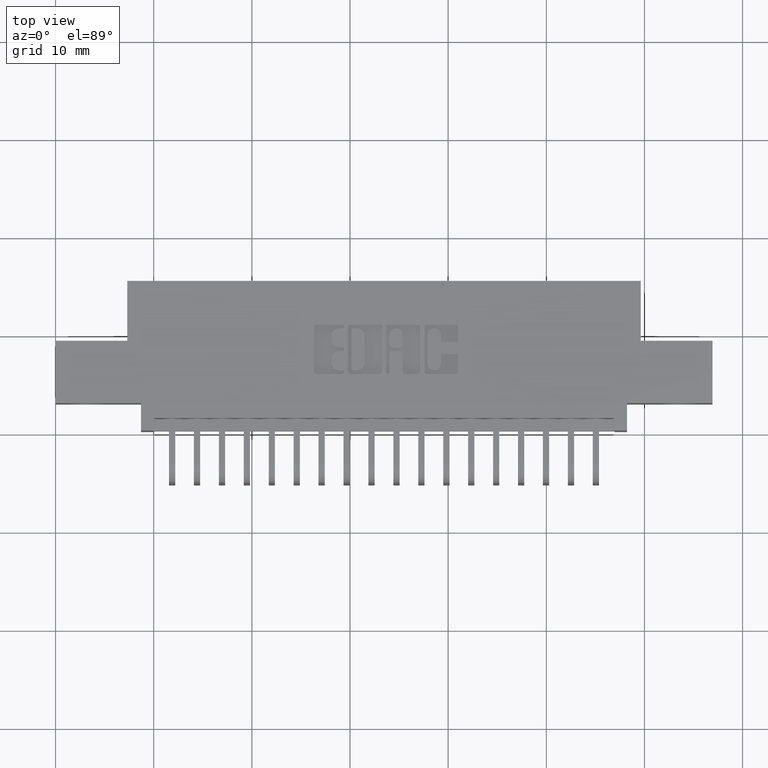
[diagram: clean part render]
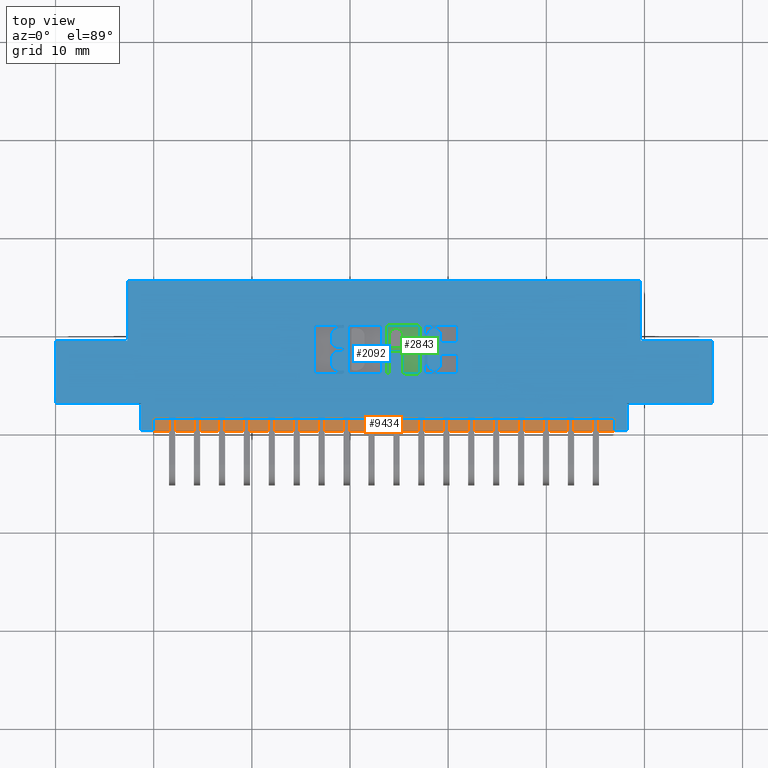
[diagram: same view with three faces highlighted in distinct colors, each labeled with its STEP entity id]
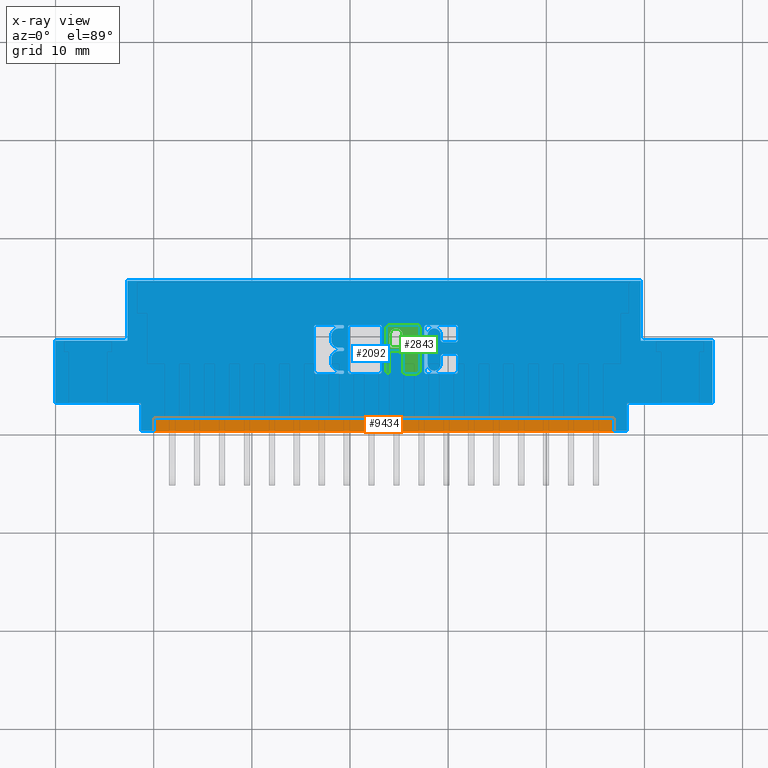
[diagram: x-ray of the same camera — body ghosted, the three highlighted faces saturated]
A machine part, top view with three faces highlighted in distinct colors.
The next image is the same camera in x-ray (body ghosted, the three faces saturated) — at least one of them is partly hidden behind the body in this view.
Their STEP definitions:

[orange] entity #9434 — the highlighted planar face has unit normal (0, 0, -1).
#3595 = CARTESIAN_POINT ( 'NONE',  ( 0.3924999999999996800, 0.05000000000000000300, -0.1499999999999999900 ) ) ;
#3842 = AXIS2_PLACEMENT_3D ( 'NONE', #12564, #18676, #9503 ) ;
#3894 = VERTEX_POINT ( 'NONE', #20000 ) ;
#4506 = ORIENTED_EDGE ( 'NONE', *, *, #20128, .F. ) ;
#5295 = CARTESIAN_POINT ( 'NONE',  ( 0.3924999999999996800, 0.0000000000000000000, -0.1499999999999999900 ) ) ;
#5763 = VERTEX_POINT ( 'NONE', #18552 ) ;
#6067 = DIRECTION ( 'NONE',  ( -0.0000000000000000000, -1.000000000000000000, -0.0000000000000000000 ) ) ;
#6996 = ORIENTED_EDGE ( 'NONE', *, *, #18932, .T. ) ;
#7812 = DIRECTION ( 'NONE',  ( -0.0000000000000000000, -1.000000000000000000, -0.0000000000000000000 ) ) ;
#7938 = PLANE ( 'NONE',  #3842 ) ;
#8063 = VERTEX_POINT ( 'NONE', #19778 ) ;
#8411 = LINE ( 'NONE', #18079, #16608 ) ;
#9154 = CARTESIAN_POINT ( 'NONE',  ( 0.3924999999999996800, 0.05000000000000000300, -0.1499999999999999900 ) ) ;
#9434 = ADVANCED_FACE ( 'NONE', ( #19402 ), #7938, .F. ) ;
#9503 = DIRECTION ( 'NONE',  ( -1.000000000000000000, 0.0000000000000000000, -0.0000000000000000000 ) ) ;
#9947 = ORIENTED_EDGE ( 'NONE', *, *, #11649, .T. ) ;
#10896 = CARTESIAN_POINT ( 'NONE',  ( 2.242499999999999700, 0.05000000000000000300, -0.1499999999999999900 ) ) ;
#11649 = EDGE_CURVE ( 'NONE', #3894, #5763, #12471, .T. ) ;
#12471 = LINE ( 'NONE', #5295, #19096 ) ;
#12564 = CARTESIAN_POINT ( 'NONE',  ( 0.3924999999999996800, 0.05000000000000000300, -0.1499999999999999900 ) ) ;
#13480 = DIRECTION ( 'NONE',  ( 1.000000000000000000, 0.0000000000000000000, 0.0000000000000000000 ) ) ;
#14464 = VECTOR ( 'NONE', #6067, 39.37007874015748100 ) ;
#14610 = VECTOR ( 'NONE', #7812, 39.37007874015748100 ) ;
#15394 = EDGE_CURVE ( 'NONE', #8063, #5763, #18683, .T. ) ;
#16608 = VECTOR ( 'NONE', #13480, 39.37007874015748100 ) ;
#16651 = ORIENTED_EDGE ( 'NONE', *, *, #15394, .F. ) ;
#17380 = VERTEX_POINT ( 'NONE', #3595 ) ;
#17683 = DIRECTION ( 'NONE',  ( 1.000000000000000000, 0.0000000000000000000, 0.0000000000000000000 ) ) ;
#18079 = CARTESIAN_POINT ( 'NONE',  ( 0.3924999999999996800, 0.05000000000000000300, -0.1499999999999999900 ) ) ;
#18320 = EDGE_LOOP ( 'NONE', ( #9947, #16651, #4506, #6996 ) ) ;
#18539 = LINE ( 'NONE', #9154, #14464 ) ;
#18552 = CARTESIAN_POINT ( 'NONE',  ( 2.242499999999999700, 0.0000000000000000000, -0.1499999999999999900 ) ) ;
#18676 = DIRECTION ( 'NONE',  ( 0.0000000000000000000, 0.0000000000000000000, -1.000000000000000000 ) ) ;
#18683 = LINE ( 'NONE', #10896, #14610 ) ;
#18932 = EDGE_CURVE ( 'NONE', #17380, #3894, #18539, .T. ) ;
#19096 = VECTOR ( 'NONE', #17683, 39.37007874015748100 ) ;
#19402 = FACE_OUTER_BOUND ( 'NONE', #18320, .T. ) ;
#19778 = CARTESIAN_POINT ( 'NONE',  ( 2.242499999999999700, 0.05000000000000000300, -0.1499999999999999900 ) ) ;
#20000 = CARTESIAN_POINT ( 'NONE',  ( 0.3924999999999996800, 0.0000000000000000000, -0.1499999999999999900 ) ) ;
#20128 = EDGE_CURVE ( 'NONE', #17380, #8063, #8411, .T. ) ;

[blue] entity #2092 — the highlighted planar face has unit normal (0, 0, -1).
#28 = AXIS2_PLACEMENT_3D ( 'NONE', #8280, #19001, #9845 ) ;
#110 = VERTEX_POINT ( 'NONE', #12556 ) ;
#131 = DIRECTION ( 'NONE',  ( 1.000000000000000000, 0.0000000000000000000, 0.0000000000000000000 ) ) ;
#156 = DIRECTION ( 'NONE',  ( -0.0000000000000000000, 0.0000000000000000000, 1.000000000000000000 ) ) ;
#159 = LINE ( 'NONE', #19809, #8327 ) ;
#164 = DIRECTION ( 'NONE',  ( -0.0000000000000000000, -1.000000000000000000, -0.0000000000000000000 ) ) ;
#221 = VERTEX_POINT ( 'NONE', #12115 ) ;
#286 = ORIENTED_EDGE ( 'NONE', *, *, #1198, .F. ) ;
#313 = VECTOR ( 'NONE', #10964, 39.37007874015748100 ) ;
#316 = VERTEX_POINT ( 'NONE', #2886 ) ;
#317 = VECTOR ( 'NONE', #14643, 39.37007874015748100 ) ;
#346 = VERTEX_POINT ( 'NONE', #12789 ) ;
#351 = DIRECTION ( 'NONE',  ( 1.000000000000000000, 0.0000000000000000000, 0.0000000000000000000 ) ) ;
#424 = AXIS2_PLACEMENT_3D ( 'NONE', #9583, #20272, #11155 ) ;
#430 = DIRECTION ( 'NONE',  ( -0.0000000000000000000, 0.0000000000000000000, 1.000000000000000000 ) ) ;
#450 = CARTESIAN_POINT ( 'NONE',  ( -0.0000000000000000000, 0.4094147637527354400, 0.0000000000000000000 ) ) ;
#536 = EDGE_CURVE ( 'NONE', #15886, #316, #9374, .T. ) ;
#539 = DIRECTION ( 'NONE',  ( 1.000000000000000000, 0.0000000000000000000, 0.0000000000000000000 ) ) ;
#553 = CARTESIAN_POINT ( 'NONE',  ( 1.382528815100187300, 0.3083133606535525300, 0.0000000000000000000 ) ) ;
#628 = VERTEX_POINT ( 'NONE', #17669 ) ;
#671 = EDGE_CURVE ( 'NONE', #3615, #16933, #15611, .T. ) ;
#686 = VECTOR ( 'NONE', #9913, 39.37007874015748100 ) ;
#733 = CARTESIAN_POINT ( 'NONE',  ( 1.614178631909971800, 0.0000000000000000000, 0.0000000000000000000 ) ) ;
#789 = DIRECTION ( 'NONE',  ( 1.000000000000000000, 0.0000000000000000000, 0.0000000000000000000 ) ) ;
#821 = LINE ( 'NONE', #15071, #8457 ) ;
#872 = CARTESIAN_POINT ( 'NONE',  ( 1.150633606535335300, 0.2337142671046476800, 0.0000000000000000000 ) ) ;
#987 = EDGE_CURVE ( 'NONE', #5099, #4169, #9832, .T. ) ;
#1019 = VERTEX_POINT ( 'NONE', #17648 ) ;
#1026 = AXIS2_PLACEMENT_3D ( 'NONE', #12354, #2810, #13878 ) ;
#1036 = CARTESIAN_POINT ( 'NONE',  ( 1.544978156973178600, 0.0000000000000000000, 0.0000000000000000000 ) ) ;
#1054 = ORIENTED_EDGE ( 'NONE', *, *, #18852, .F. ) ;
#1077 = LINE ( 'NONE', #18078, #4970 ) ;
#1099 = EDGE_LOOP ( 'NONE', ( #11920, #18121, #9958, #13582, #8500, #19771, #1132, #15953, #5529, #7014, #11668, #2942, #9035, #2782, #5557, #19540, #286, #18516, #19440, #10362 ) ) ;
#1132 = ORIENTED_EDGE ( 'NONE', *, *, #7482, .T. ) ;
#1188 = VERTEX_POINT ( 'NONE', #19569 ) ;
#1198 = EDGE_CURVE ( 'NONE', #15923, #8770, #6873, .T. ) ;
#1218 = VECTOR ( 'NONE', #1532, 39.37007874015748100 ) ;
#1236 = DIRECTION ( 'NONE',  ( 0.0000000000000000000, -1.000000000000000000, 0.0000000000000000000 ) ) ;
#1251 = DIRECTION ( 'NONE',  ( 1.000000000000000000, 0.0000000000000000000, 0.0000000000000000000 ) ) ;
#1264 = CARTESIAN_POINT ( 'NONE',  ( 1.335904381632127200, 0.4133410318342098400, 0.0000000000000000000 ) ) ;
#1265 = PLANE ( 'NONE',  #8184 ) ;
#1266 = EDGE_CURVE ( 'NONE', #12005, #1860, #9589, .T. ) ;
#1280 = DIRECTION ( 'NONE',  ( 1.000000000000000000, -0.0000000000000000000, -0.0000000000000000000 ) ) ;
#1315 = VERTEX_POINT ( 'NONE', #4406 ) ;
#1316 = CARTESIAN_POINT ( 'NONE',  ( 0.0000000000000000000, 0.3599999999999999900, 0.0000000000000000000 ) ) ;
#1353 = CARTESIAN_POINT ( 'NONE',  ( 1.478722383097458300, 0.4133410318342098400, 0.0000000000000000000 ) ) ;
#1394 = EDGE_CURVE ( 'NONE', #346, #10693, #11287, .T. ) ;
#1438 = ORIENTED_EDGE ( 'NONE', *, *, #9772, .T. ) ;
#1456 = DIRECTION ( 'NONE',  ( -0.0000000000000000000, 1.000000000000000000, -0.0000000000000000000 ) ) ;
#1490 = EDGE_CURVE ( 'NONE', #10508, #18309, #9815, .T. ) ;
#1526 = VECTOR ( 'NONE', #8660, 39.37007874015748100 ) ;
#1532 = DIRECTION ( 'NONE',  ( 0.0000000000000000000, -1.000000000000000000, 0.0000000000000000000 ) ) ;
#1553 = CARTESIAN_POINT ( 'NONE',  ( 0.2874999999999999800, 0.3599999999999999900, 0.0000000000000000000 ) ) ;
#1568 = DIRECTION ( 'NONE',  ( -0.0000000000000000000, 0.0000000000000000000, 1.000000000000000000 ) ) ;
#1619 = ORIENTED_EDGE ( 'NONE', *, *, #9361, .F. ) ;
#1676 = AXIS2_PLACEMENT_3D ( 'NONE', #6535, #17343, #8127 ) ;
#1833 = ORIENTED_EDGE ( 'NONE', *, *, #5113, .F. ) ;
#1860 = VERTEX_POINT ( 'NONE', #4005 ) ;
#1901 = ORIENTED_EDGE ( 'NONE', *, *, #4697, .T. ) ;
#2004 = EDGE_CURVE ( 'NONE', #16871, #20258, #159, .T. ) ;
#2020 = DIRECTION ( 'NONE',  ( -1.000000000000000000, 0.0000000000000000000, 0.0000000000000000000 ) ) ;
#2024 = VECTOR ( 'NONE', #6783, 39.37007874015748100 ) ;
#2092 = ADVANCED_FACE ( 'NONE', ( #7356, #11034, #6834, #2500, #15077 ), #1265, .F. ) ;
#2103 = DIRECTION ( 'NONE',  ( -0.0000000000000000000, 0.0000000000000000000, 1.000000000000000000 ) ) ;
#2109 = DIRECTION ( 'NONE',  ( -1.000000000000000000, 0.0000000000000000000, 0.0000000000000000000 ) ) ;
#2133 = CARTESIAN_POINT ( 'NONE',  ( -0.0000000000000000000, 0.2268432979619829400, 0.0000000000000000000 ) ) ;
#2189 = VERTEX_POINT ( 'NONE', #12630 ) ;
#2192 = DIRECTION ( 'NONE',  ( -0.0000000000000000000, 0.0000000000000000000, 1.000000000000000000 ) ) ;
#2201 = CARTESIAN_POINT ( 'NONE',  ( 2.634999999999999800, 0.3599999999999999900, 0.0000000000000000000 ) ) ;
#2213 = CARTESIAN_POINT ( 'NONE',  ( 2.347499999999999700, 0.3599999999999999900, 0.0000000000000000000 ) ) ;
#2214 = EDGE_CURVE ( 'NONE', #15499, #9269, #8563, .T. ) ;
#2231 = LINE ( 'NONE', #9567, #1218 ) ;
#2321 = CARTESIAN_POINT ( 'NONE',  ( 1.544978156973178600, 0.2965345564089684200, 0.0000000000000000000 ) ) ;
#2370 = ORIENTED_EDGE ( 'NONE', *, *, #1490, .F. ) ;
#2409 = CIRCLE ( 'NONE', #4932, 0.009815670203803340800 ) ;
#2426 = EDGE_CURVE ( 'NONE', #14438, #2189, #16689, .T. ) ;
#2479 = VECTOR ( 'NONE', #14771, 39.37007874015748100 ) ;
#2500 = FACE_BOUND ( 'NONE', #11684, .T. ) ;
#2538 = DIRECTION ( 'NONE',  ( 1.000000000000000000, 0.0000000000000000000, 0.0000000000000000000 ) ) ;
#2550 = CARTESIAN_POINT ( 'NONE',  ( 0.0000000000000000000, 0.3063502266127572900, 0.0000000000000000000 ) ) ;
#2586 = CARTESIAN_POINT ( 'NONE',  ( 1.150633606535351100, 0.4094147637527354400, 0.0000000000000000000 ) ) ;
#2612 = CARTESIAN_POINT ( 'NONE',  ( 1.046342110619918400, 0.2268432979619847100, 0.0000000000000000000 ) ) ;
#2676 = CIRCLE ( 'NONE', #16700, 0.03141014465215624000 ) ;
#2693 = DIRECTION ( 'NONE',  ( 0.0000000000000000000, -1.000000000000000000, 0.0000000000000000000 ) ) ;
#2694 = EDGE_CURVE ( 'NONE', #18309, #17138, #4527, .T. ) ;
#2701 = EDGE_CURVE ( 'NONE', #8770, #16807, #8731, .T. ) ;
#2763 = VERTEX_POINT ( 'NONE', #17275 ) ;
#2780 = LINE ( 'NONE', #8730, #14847 ) ;
#2782 = ORIENTED_EDGE ( 'NONE', *, *, #11021, .F. ) ;
#2810 = DIRECTION ( 'NONE',  ( -0.0000000000000000000, 0.0000000000000000000, 1.000000000000000000 ) ) ;
#2886 = CARTESIAN_POINT ( 'NONE',  ( 1.326088711428330600, 0.4133410318342098400, 0.0000000000000000000 ) ) ;
#2914 = DIRECTION ( 'NONE',  ( -1.000000000000000000, 0.0000000000000000000, -0.0000000000000000000 ) ) ;
#2924 = VERTEX_POINT ( 'NONE', #3584 ) ;
#2942 = ORIENTED_EDGE ( 'NONE', *, *, #6522, .F. ) ;
#2963 = EDGE_CURVE ( 'NONE', #18928, #4767, #8007, .T. ) ;
#2968 = DIRECTION ( 'NONE',  ( 1.000000000000000000, 0.0000000000000000000, 0.0000000000000000000 ) ) ;
#3048 = CARTESIAN_POINT ( 'NONE',  ( 0.0000000000000000000, 0.1100000000000000000, 0.0000000000000000000 ) ) ;
#3056 = VERTEX_POINT ( 'NONE', #2213 ) ;
#3117 = LINE ( 'NONE', #18700, #6920 ) ;
#3137 = VECTOR ( 'NONE', #1236, 39.37007874015748100 ) ;
#3177 = ORIENTED_EDGE ( 'NONE', *, *, #17930, .F. ) ;
#3387 = ORIENTED_EDGE ( 'NONE', *, *, #13607, .F. ) ;
#3444 = EDGE_CURVE ( 'NONE', #12824, #5651, #4746, .T. ) ;
#3576 = DIRECTION ( 'NONE',  ( 1.000000000000000000, 0.0000000000000000000, 0.0000000000000000000 ) ) ;
#3580 = DIRECTION ( 'NONE',  ( -0.0000000000000000000, 0.0000000000000000000, 1.000000000000000000 ) ) ;
#3584 = CARTESIAN_POINT ( 'NONE',  ( 1.349646319917450000, 0.3181290308573483900, 0.0000000000000000000 ) ) ;
#3615 = VERTEX_POINT ( 'NONE', #13353 ) ;
#3655 = ORIENTED_EDGE ( 'NONE', *, *, #15472, .F. ) ;
#3730 = ORIENTED_EDGE ( 'NONE', *, *, #6351, .F. ) ;
#3757 = AXIS2_PLACEMENT_3D ( 'NONE', #9648, #20332, #11216 ) ;
#3782 = DIRECTION ( 'NONE',  ( -0.0000000000000000000, 0.0000000000000000000, 1.000000000000000000 ) ) ;
#3783 = ORIENTED_EDGE ( 'NONE', *, *, #19518, .F. ) ;
#3788 = CIRCLE ( 'NONE', #16776, 0.02625691779518022500 ) ;
#3805 = EDGE_CURVE ( 'NONE', #5544, #5603, #6243, .T. ) ;
#3844 = VECTOR ( 'NONE', #15477, 39.37007874015748100 ) ;
#3846 = LINE ( 'NONE', #18337, #15851 ) ;
#3890 = CARTESIAN_POINT ( 'NONE',  ( 1.326088711428330600, 0.2337142671046476800, 0.0000000000000000000 ) ) ;
#3902 = VECTOR ( 'NONE', #13787, 39.37007874015748100 ) ;
#3916 = VECTOR ( 'NONE', #19729, 39.37007874015748100 ) ;
#3947 = CARTESIAN_POINT ( 'NONE',  ( 1.604362961706156100, 0.3063502266127572900, 0.0000000000000000000 ) ) ;
#4005 = CARTESIAN_POINT ( 'NONE',  ( 1.339830649713646500, 0.2337142671046476800, 0.0000000000000000000 ) ) ;
#4040 = EDGE_CURVE ( 'NONE', #17138, #15499, #9666, .T. ) ;
#4073 = DIRECTION ( 'NONE',  ( 0.0000000000000000000, 1.000000000000000000, -0.0000000000000000000 ) ) ;
#4088 = ORIENTED_EDGE ( 'NONE', *, *, #1266, .T. ) ;
#4092 = CARTESIAN_POINT ( 'NONE',  ( 1.150633606535335300, 0.2337142671046476800, 0.0000000000000000000 ) ) ;
#4119 = CARTESIAN_POINT ( 'NONE',  ( 1.461544960240806400, 0.2366589681657806100, 0.0000000000000000000 ) ) ;
#4169 = VERTEX_POINT ( 'NONE', #17936 ) ;
#4182 = LINE ( 'NONE', #9277, #3137 ) ;
#4191 = ORIENTED_EDGE ( 'NONE', *, *, #17379, .F. ) ;
#4193 = ORIENTED_EDGE ( 'NONE', *, *, #3444, .F. ) ;
#4225 = ORIENTED_EDGE ( 'NONE', *, *, #12955, .F. ) ;
#4262 = CARTESIAN_POINT ( 'NONE',  ( 1.339830649713646500, 0.0000000000000000000, 0.0000000000000000000 ) ) ;
#4288 = AXIS2_PLACEMENT_3D ( 'NONE', #15010, #5723, #16553 ) ;
#4371 = CARTESIAN_POINT ( 'NONE',  ( 1.105726915352909200, 0.3780046191005195200, 0.0000000000000000000 ) ) ;
#4399 = EDGE_CURVE ( 'NONE', #2189, #14615, #4182, .T. ) ;
#4406 = CARTESIAN_POINT ( 'NONE',  ( 1.105726915352909200, 0.3632811137948581100, 0.0000000000000000000 ) ) ;
#4466 = ORIENTED_EDGE ( 'NONE', *, *, #19841, .F. ) ;
#4467 = CARTESIAN_POINT ( 'NONE',  ( 1.157504575677999400, 0.4162857328953860100, 0.0000000000000000000 ) ) ;
#4510 = VECTOR ( 'NONE', #164, 39.37007874015748100 ) ;
#4514 = VERTEX_POINT ( 'NONE', #18724 ) ;
#4523 = DIRECTION ( 'NONE',  ( -0.0000000000000000000, 0.0000000000000000000, 1.000000000000000000 ) ) ;
#4527 = CIRCLE ( 'NONE', #8446, 0.006870969142648433200 ) ;
#4552 = CARTESIAN_POINT ( 'NONE',  ( 2.292499999999999500, 0.0000000000000000000, 0.0000000000000000000 ) ) ;
#4612 = VERTEX_POINT ( 'NONE', #12787 ) ;
#4625 = AXIS2_PLACEMENT_3D ( 'NONE', #13218, #3782, #14754 ) ;
#4691 = CARTESIAN_POINT ( 'NONE',  ( 1.392344485303984400, 0.3083133606535432000, 0.0000000000000000000 ) ) ;
#4697 = EDGE_CURVE ( 'NONE', #14598, #6632, #18515, .T. ) ;
#4746 = CIRCLE ( 'NONE', #18978, 0.009815670203805798900 ) ;
#4759 = LINE ( 'NONE', #18566, #313 ) ;
#4767 = VERTEX_POINT ( 'NONE', #19290 ) ;
#4803 = VERTEX_POINT ( 'NONE', #2201 ) ;
#4807 = ORIENTED_EDGE ( 'NONE', *, *, #18312, .F. ) ;
#4811 = VERTEX_POINT ( 'NONE', #7143 ) ;
#4829 = VECTOR ( 'NONE', #8968, 39.37007874015748100 ) ;
#4851 = ORIENTED_EDGE ( 'NONE', *, *, #6237, .F. ) ;
#4913 = CIRCLE ( 'NONE', #13742, 0.006870969142657995000 ) ;
#4932 = AXIS2_PLACEMENT_3D ( 'NONE', #7433, #18196, #9000 ) ;
#4954 = DIRECTION ( 'NONE',  ( -1.000000000000000000, 0.0000000000000000000, 0.0000000000000000000 ) ) ;
#4970 = VECTOR ( 'NONE', #8881, 39.37007874015748100 ) ;
#5003 = ORIENTED_EDGE ( 'NONE', *, *, #13995, .F. ) ;
#5099 = VERTEX_POINT ( 'NONE', #4691 ) ;
#5106 = AXIS2_PLACEMENT_3D ( 'NONE', #553, #430, #351 ) ;
#5113 = EDGE_CURVE ( 'NONE', #4612, #10693, #11324, .T. ) ;
#5129 = DIRECTION ( 'NONE',  ( -0.0000000000000000000, 0.0000000000000000000, 1.000000000000000000 ) ) ;
#5172 = CARTESIAN_POINT ( 'NONE',  ( 2.634999999999999800, 0.5999999999999999800, 0.0000000000000000000 ) ) ;
#5271 = CARTESIAN_POINT ( 'NONE',  ( 1.308911288571668700, 0.0000000000000000000, 0.0000000000000000000 ) ) ;
#5293 = EDGE_CURVE ( 'NONE', #6300, #14812, #12049, .T. ) ;
#5296 = ORIENTED_EDGE ( 'NONE', *, *, #19760, .F. ) ;
#5380 = VERTEX_POINT ( 'NONE', #8488 ) ;
#5386 = VECTOR ( 'NONE', #13649, 39.37007874015748100 ) ;
#5397 = CARTESIAN_POINT ( 'NONE',  ( 0.0000000000000000000, 0.5999999999999999800, 0.0000000000000000000 ) ) ;
#5455 = ORIENTED_EDGE ( 'NONE', *, *, #536, .F. ) ;
#5473 = VECTOR ( 'NONE', #2020, 39.37007874015748100 ) ;
#5529 = ORIENTED_EDGE ( 'NONE', *, *, #9178, .F. ) ;
#5544 = VERTEX_POINT ( 'NONE', #2321 ) ;
#5557 = ORIENTED_EDGE ( 'NONE', *, *, #15093, .F. ) ;
#5603 = VERTEX_POINT ( 'NONE', #16622 ) ;
#5616 = EDGE_CURVE ( 'NONE', #8676, #4612, #6921, .T. ) ;
#5651 = VERTEX_POINT ( 'NONE', #2612 ) ;
#5684 = VECTOR ( 'NONE', #4954, 39.37007874015748100 ) ;
#5689 = EDGE_LOOP ( 'NONE', ( #1901, #16355, #7697, #6560, #4807, #13981, #5003, #12799, #3387, #6226, #1833, #7950, #9414, #1054, #4193, #8106, #10458, #15670, #12590, #2370, #10913 ) ) ;
#5723 = DIRECTION ( 'NONE',  ( -0.0000000000000000000, 0.0000000000000000000, 1.000000000000000000 ) ) ;
#5732 = VECTOR ( 'NONE', #2693, 39.37007874015748100 ) ;
#5742 = DIRECTION ( 'NONE',  ( 1.000000000000000000, 0.0000000000000000000, 0.0000000000000000000 ) ) ;
#5781 = ORIENTED_EDGE ( 'NONE', *, *, #10636, .T. ) ;
#5815 = DIRECTION ( 'NONE',  ( -0.0000000000000000000, -1.000000000000000000, -0.0000000000000000000 ) ) ;
#5816 = ORIENTED_EDGE ( 'NONE', *, *, #13518, .T. ) ;
#5988 = VERTEX_POINT ( 'NONE', #19318 ) ;
#6069 = CARTESIAN_POINT ( 'NONE',  ( 1.335904381632127200, 0.4231567020380063200, 0.0000000000000000000 ) ) ;
#6141 = CARTESIAN_POINT ( 'NONE',  ( 1.488538053301299100, 0.4231567020380507800, 0.0000000000000000000 ) ) ;
#6197 = LINE ( 'NONE', #15825, #5684 ) ;
#6209 = EDGE_CURVE ( 'NONE', #3056, #16933, #3846, .T. ) ;
#6214 = CARTESIAN_POINT ( 'NONE',  ( 1.332959680570986700, 0.2337142671046476800, 0.0000000000000000000 ) ) ;
#6226 = ORIENTED_EDGE ( 'NONE', *, *, #1394, .T. ) ;
#6237 = EDGE_CURVE ( 'NONE', #2763, #11019, #19895, .T. ) ;
#6243 = LINE ( 'NONE', #1036, #5732 ) ;
#6285 = VERTEX_POINT ( 'NONE', #20048 ) ;
#6300 = VERTEX_POINT ( 'NONE', #18597 ) ;
#6311 = CARTESIAN_POINT ( 'NONE',  ( 1.299095618367895900, 0.4231567020380507800, 0.0000000000000000000 ) ) ;
#6349 = VECTOR ( 'NONE', #2109, 39.37007874015748100 ) ;
#6351 = EDGE_CURVE ( 'NONE', #18452, #3615, #17511, .T. ) ;
#6411 = AXIS2_PLACEMENT_3D ( 'NONE', #18156, #8948, #19666 ) ;
#6434 = AXIS2_PLACEMENT_3D ( 'NONE', #17037, #7823, #18569 ) ;
#6522 = EDGE_CURVE ( 'NONE', #12196, #16367, #7895, .T. ) ;
#6535 = CARTESIAN_POINT ( 'NONE',  ( 1.604362961706153000, 0.2965345564089702000, 0.0000000000000000000 ) ) ;
#6560 = ORIENTED_EDGE ( 'NONE', *, *, #11685, .F. ) ;
#6562 = ORIENTED_EDGE ( 'NONE', *, *, #14166, .F. ) ;
#6632 = VERTEX_POINT ( 'NONE', #4371 ) ;
#6704 = DIRECTION ( 'NONE',  ( -1.000000000000000000, 0.0000000000000000000, 0.0000000000000000000 ) ) ;
#6741 = DIRECTION ( 'NONE',  ( -0.0000000000000000000, 0.0000000000000000000, 1.000000000000000000 ) ) ;
#6768 = DIRECTION ( 'NONE',  ( -0.0000000000000000000, -1.000000000000000000, -0.0000000000000000000 ) ) ;
#6783 = DIRECTION ( 'NONE',  ( 0.0000000000000000000, 1.000000000000000000, -0.0000000000000000000 ) ) ;
#6796 = LINE ( 'NONE', #20341, #18628 ) ;
#6834 = FACE_OUTER_BOUND ( 'NONE', #13301, .T. ) ;
#6857 = CIRCLE ( 'NONE', #7393, 0.009815670203803340800 ) ;
#6873 = CIRCLE ( 'NONE', #19606, 0.009815670203840767500 ) ;
#6920 = VECTOR ( 'NONE', #15630, 39.37007874015748100 ) ;
#6921 = CIRCLE ( 'NONE', #15976, 0.006870969142662229500 ) ;
#7014 = ORIENTED_EDGE ( 'NONE', *, *, #16386, .F. ) ;
#7024 = VECTOR ( 'NONE', #16128, 39.37007874015748100 ) ;
#7086 = CARTESIAN_POINT ( 'NONE',  ( 0.0000000000000000000, 0.5999999999999999800, 0.0000000000000000000 ) ) ;
#7143 = CARTESIAN_POINT ( 'NONE',  ( 1.308911288571668700, 0.2366589681657896800, 0.0000000000000000000 ) ) ;
#7348 = EDGE_CURVE ( 'NONE', #14615, #221, #14136, .T. ) ;
#7354 = DIRECTION ( 'NONE',  ( -0.0000000000000000000, 0.0000000000000000000, 1.000000000000000000 ) ) ;
#7356 = FACE_BOUND ( 'NONE', #1099, .T. ) ;
#7385 = DIRECTION ( 'NONE',  ( 1.000000000000000000, 0.0000000000000000000, 0.0000000000000000000 ) ) ;
#7393 = AXIS2_PLACEMENT_3D ( 'NONE', #18983, #9830, #131 ) ;
#7433 = CARTESIAN_POINT ( 'NONE',  ( 1.402160155507787800, 0.2366589681657875800, 0.0000000000000000000 ) ) ;
#7443 = LINE ( 'NONE', #12097, #7941 ) ;
#7448 = EDGE_CURVE ( 'NONE', #4767, #16127, #8566, .T. ) ;
#7469 = ORIENTED_EDGE ( 'NONE', *, *, #671, .F. ) ;
#7472 = EDGE_CURVE ( 'NONE', #7681, #17578, #19836, .T. ) ;
#7480 = CIRCLE ( 'NONE', #20333, 0.009815670203811535700 ) ;
#7482 = EDGE_CURVE ( 'NONE', #16871, #5603, #3788, .T. ) ;
#7606 = EDGE_CURVE ( 'NONE', #6285, #11223, #2231, .T. ) ;
#7663 = DIRECTION ( 'NONE',  ( -0.0000000000000000000, 0.0000000000000000000, 1.000000000000000000 ) ) ;
#7681 = VERTEX_POINT ( 'NONE', #9758 ) ;
#7697 = ORIENTED_EDGE ( 'NONE', *, *, #14366, .T. ) ;
#7740 = CARTESIAN_POINT ( 'NONE',  ( 0.0000000000000000000, 0.5999999999999999800, 0.0000000000000000000 ) ) ;
#7804 = DIRECTION ( 'NONE',  ( 1.000000000000000000, 0.0000000000000000000, 0.0000000000000000000 ) ) ;
#7823 = DIRECTION ( 'NONE',  ( -0.0000000000000000000, 0.0000000000000000000, 1.000000000000000000 ) ) ;
#7833 = CARTESIAN_POINT ( 'NONE',  ( 1.137137060005109400, 0.2719953808994901000, 0.0000000000000000000 ) ) ;
#7854 = ORIENTED_EDGE ( 'NONE', *, *, #7472, .F. ) ;
#7895 = LINE ( 'NONE', #14514, #2024 ) ;
#7927 = CARTESIAN_POINT ( 'NONE',  ( 1.478722383097458300, 0.0000000000000000000, 0.0000000000000000000 ) ) ;
#7941 = VECTOR ( 'NONE', #8946, 39.37007874015748100 ) ;
#7950 = ORIENTED_EDGE ( 'NONE', *, *, #5616, .F. ) ;
#8000 = LINE ( 'NONE', #17229, #15705 ) ;
#8007 = LINE ( 'NONE', #16260, #317 ) ;
#8038 = ORIENTED_EDGE ( 'NONE', *, *, #17211, .F. ) ;
#8043 = CIRCLE ( 'NONE', #6434, 0.009815670203839947000 ) ;
#8080 = CARTESIAN_POINT ( 'NONE',  ( 1.046342110619937800, 0.4231567020380324600, 0.0000000000000000000 ) ) ;
#8086 = ORIENTED_EDGE ( 'NONE', *, *, #8804, .T. ) ;
#8106 = ORIENTED_EDGE ( 'NONE', *, *, #11583, .F. ) ;
#8127 = DIRECTION ( 'NONE',  ( 1.000000000000000000, 0.0000000000000000000, 0.0000000000000000000 ) ) ;
#8184 = AXIS2_PLACEMENT_3D ( 'NONE', #7740, #12440, #2914 ) ;
#8253 = LINE ( 'NONE', #11373, #15966 ) ;
#8280 = CARTESIAN_POINT ( 'NONE',  ( 1.299095618367827700, 0.4133410318342097300, 0.0000000000000000000 ) ) ;
#8327 = VECTOR ( 'NONE', #13762, 39.37007874015748100 ) ;
#8420 = EDGE_CURVE ( 'NONE', #14277, #11108, #11703, .T. ) ;
#8441 = CARTESIAN_POINT ( 'NONE',  ( 1.137137060005125200, 0.3780046191005195200, 0.0000000000000000000 ) ) ;
#8446 = AXIS2_PLACEMENT_3D ( 'NONE', #9493, #20184, #11073 ) ;
#8454 = CARTESIAN_POINT ( 'NONE',  ( 1.183270709963010000, 0.4231567020380507800, 0.0000000000000000000 ) ) ;
#8457 = VECTOR ( 'NONE', #7385, 39.37007874015748100 ) ;
#8469 = VERTEX_POINT ( 'NONE', #3947 ) ;
#8488 = CARTESIAN_POINT ( 'NONE',  ( 1.105726915352927400, 0.2867188862052003100, 0.0000000000000000000 ) ) ;
#8500 = ORIENTED_EDGE ( 'NONE', *, *, #15482, .T. ) ;
#8563 = CIRCLE ( 'NONE', #13358, 0.009815670203822599700 ) ;
#8566 = CIRCLE ( 'NONE', #13703, 0.009815670203804980100 ) ;
#8574 = CARTESIAN_POINT ( 'NONE',  ( 1.554793827176966800, 0.3063502266127572900, 0.0000000000000000000 ) ) ;
#8660 = DIRECTION ( 'NONE',  ( -0.0000000000000000000, -1.000000000000000000, -0.0000000000000000000 ) ) ;
#8671 = LINE ( 'NONE', #9127, #3902 ) ;
#8676 = VERTEX_POINT ( 'NONE', #16844 ) ;
#8694 = VERTEX_POINT ( 'NONE', #4552 ) ;
#8726 = CARTESIAN_POINT ( 'NONE',  ( 0.0000000000000000000, 0.2268432979619843800, 0.0000000000000000000 ) ) ;
#8730 = CARTESIAN_POINT ( 'NONE',  ( 1.105726915352909200, 0.0000000000000000000, 0.0000000000000000000 ) ) ;
#8731 = LINE ( 'NONE', #7927, #16430 ) ;
#8759 = VERTEX_POINT ( 'NONE', #15571 ) ;
#8770 = VERTEX_POINT ( 'NONE', #1353 ) ;
#8788 = CARTESIAN_POINT ( 'NONE',  ( 1.604362961706134100, 0.2366589681657896800, 0.0000000000000000000 ) ) ;
#8800 = DIRECTION ( 'NONE',  ( 1.000000000000000000, 0.0000000000000000000, 0.0000000000000000000 ) ) ;
#8804 = EDGE_CURVE ( 'NONE', #15886, #11019, #3117, .T. ) ;
#8881 = DIRECTION ( 'NONE',  ( 0.0000000000000000000, 1.000000000000000000, -0.0000000000000000000 ) ) ;
#8922 = CARTESIAN_POINT ( 'NONE',  ( 1.173455039759169000, 0.2366589681657896800, 0.0000000000000000000 ) ) ;
#8946 = DIRECTION ( 'NONE',  ( -0.0000000000000000000, -1.000000000000000000, -0.0000000000000000000 ) ) ;
#8948 = DIRECTION ( 'NONE',  ( -0.0000000000000000000, 0.0000000000000000000, 1.000000000000000000 ) ) ;
#8968 = DIRECTION ( 'NONE',  ( -1.000000000000000000, 0.0000000000000000000, 0.0000000000000000000 ) ) ;
#9000 = DIRECTION ( 'NONE',  ( 1.000000000000000000, 0.0000000000000000000, 0.0000000000000000000 ) ) ;
#9016 = CARTESIAN_POINT ( 'NONE',  ( -1.634053534411993100E-015, 0.2268432979619771600, 0.0000000000000000000 ) ) ;
#9035 = ORIENTED_EDGE ( 'NONE', *, *, #12436, .F. ) ;
#9036 = LINE ( 'NONE', #2550, #4829 ) ;
#9127 = CARTESIAN_POINT ( 'NONE',  ( -0.0000000000000000000, 0.2268432979619829400, 0.0000000000000000000 ) ) ;
#9153 = VERTEX_POINT ( 'NONE', #19469 ) ;
#9178 = EDGE_CURVE ( 'NONE', #13045, #5544, #20134, .T. ) ;
#9182 = LINE ( 'NONE', #9360, #13281 ) ;
#9241 = CARTESIAN_POINT ( 'NONE',  ( 1.150633606535309800, 0.3250000000000201100, 0.0000000000000000000 ) ) ;
#9269 = VERTEX_POINT ( 'NONE', #18293 ) ;
#9273 = CARTESIAN_POINT ( 'NONE',  ( -1.123269580619587000E-014, 0.3181290308573007100, 0.0000000000000000000 ) ) ;
#9277 = CARTESIAN_POINT ( 'NONE',  ( 1.173455039759169000, 0.0000000000000000000, 0.0000000000000000000 ) ) ;
#9285 = VERTEX_POINT ( 'NONE', #16817 ) ;
#9342 = CARTESIAN_POINT ( 'NONE',  ( 1.137137060005083900, 0.3318709691426836000, 0.0000000000000000000 ) ) ;
#9360 = CARTESIAN_POINT ( 'NONE',  ( 0.3924999999999996800, 0.05000000000000000300, 0.0000000000000000000 ) ) ;
#9361 = EDGE_CURVE ( 'NONE', #12414, #1860, #4913, .T. ) ;
#9374 = CIRCLE ( 'NONE', #16296, 0.009815670203796511200 ) ;
#9388 = EDGE_CURVE ( 'NONE', #18213, #5988, #12750, .T. ) ;
#9400 = DIRECTION ( 'NONE',  ( 1.000000000000000000, 0.0000000000000000000, 0.0000000000000000000 ) ) ;
#9414 = ORIENTED_EDGE ( 'NONE', *, *, #19489, .F. ) ;
#9424 = DIRECTION ( 'NONE',  ( 0.0000000000000000000, -1.000000000000000000, 0.0000000000000000000 ) ) ;
#9436 = VERTEX_POINT ( 'NONE', #3048 ) ;
#9443 = VERTEX_POINT ( 'NONE', #12621 ) ;
#9493 = CARTESIAN_POINT ( 'NONE',  ( 1.150633606535350900, 0.4162857328953860100, 0.0000000000000000000 ) ) ;
#9534 = VERTEX_POINT ( 'NONE', #14337 ) ;
#9567 = CARTESIAN_POINT ( 'NONE',  ( 1.544978156973165500, 0.0000000000000000000, 0.0000000000000000000 ) ) ;
#9583 = CARTESIAN_POINT ( 'NONE',  ( 1.299095618367861900, 0.2366589681657896800, 0.0000000000000000000 ) ) ;
#9585 = DIRECTION ( 'NONE',  ( 0.0000000000000000000, 1.000000000000000000, -0.0000000000000000000 ) ) ;
#9589 = LINE ( 'NONE', #4262, #5386 ) ;
#9590 = CIRCLE ( 'NONE', #4625, 0.009815670203806619400 ) ;
#9609 = CARTESIAN_POINT ( 'NONE',  ( 2.634999999999999800, 0.1100000000000000000, 3.226944315753274800E-016 ) ) ;
#9648 = CARTESIAN_POINT ( 'NONE',  ( 1.518721239177991800, 0.3831578459575293300, 0.0000000000000000000 ) ) ;
#9666 = LINE ( 'NONE', #10032, #5473 ) ;
#9673 = ORIENTED_EDGE ( 'NONE', *, *, #2426, .F. ) ;
#9678 = CARTESIAN_POINT ( 'NONE',  ( 1.036526440416115200, 0.2366589681657896800, 0.0000000000000000000 ) ) ;
#9752 = LINE ( 'NONE', #8726, #17896 ) ;
#9758 = CARTESIAN_POINT ( 'NONE',  ( 1.451729290037010200, 0.2268432979619843800, 0.0000000000000000000 ) ) ;
#9762 = CARTESIAN_POINT ( 'NONE',  ( 1.614178631909939800, 0.2366589681657827200, 0.0000000000000000000 ) ) ;
#9763 = VECTOR ( 'NONE', #1280, 39.37007874015748100 ) ;
#9772 = EDGE_CURVE ( 'NONE', #1019, #9436, #18228, .T. ) ;
#9797 = ORIENTED_EDGE ( 'NONE', *, *, #12403, .T. ) ;
#9815 = CIRCLE ( 'NONE', #15146, 0.006870969142648433200 ) ;
#9830 = DIRECTION ( 'NONE',  ( -0.0000000000000000000, 0.0000000000000000000, 1.000000000000000000 ) ) ;
#9832 = CIRCLE ( 'NONE', #5106, 0.009815670203797057700 ) ;
#9845 = DIRECTION ( 'NONE',  ( 1.000000000000000000, 0.0000000000000000000, 0.0000000000000000000 ) ) ;
#9856 = CARTESIAN_POINT ( 'NONE',  ( 1.046342110619922000, 0.2366589681657896800, 0.0000000000000000000 ) ) ;
#9913 = DIRECTION ( 'NONE',  ( 0.0000000000000000000, -1.000000000000000000, 0.0000000000000000000 ) ) ;
#9958 = ORIENTED_EDGE ( 'NONE', *, *, #18671, .F. ) ;
#10004 = DIRECTION ( 'NONE',  ( 1.000000000000000000, 0.0000000000000000000, 0.0000000000000000000 ) ) ;
#10032 = CARTESIAN_POINT ( 'NONE',  ( 0.0000000000000000000, 0.4231567020380324600, 0.0000000000000000000 ) ) ;
#10164 = CIRCLE ( 'NONE', #19694, 0.006870969142663458500 ) ;
#10178 = EDGE_CURVE ( 'NONE', #2924, #12005, #6857, .T. ) ;
#10205 = DIRECTION ( 'NONE',  ( -0.0000000000000000000, 0.0000000000000000000, 1.000000000000000000 ) ) ;
#10242 = CARTESIAN_POINT ( 'NONE',  ( 2.347499999999999700, 0.5999999999999999800, 0.0000000000000000000 ) ) ;
#10250 = LINE ( 'NONE', #15435, #9763 ) ;
#10362 = ORIENTED_EDGE ( 'NONE', *, *, #11798, .F. ) ;
#10364 = DIRECTION ( 'NONE',  ( 1.000000000000000000, 0.0000000000000000000, 0.0000000000000000000 ) ) ;
#10367 = EDGE_CURVE ( 'NONE', #1315, #6632, #2780, .T. ) ;
#10443 = DIRECTION ( 'NONE',  ( -0.0000000000000000000, 0.0000000000000000000, 1.000000000000000000 ) ) ;
#10458 = ORIENTED_EDGE ( 'NONE', *, *, #2214, .F. ) ;
#10487 = CIRCLE ( 'NONE', #1676, 0.009815670203786949400 ) ;
#10504 = LINE ( 'NONE', #19260, #6349 ) ;
#10508 = VERTEX_POINT ( 'NONE', #2586 ) ;
#10636 = EDGE_CURVE ( 'NONE', #4169, #2924, #17696, .T. ) ;
#10693 = VERTEX_POINT ( 'NONE', #18660 ) ;
#10694 = CARTESIAN_POINT ( 'NONE',  ( 1.544978156973165500, 0.3637718973050449400, 0.0000000000000000000 ) ) ;
#10697 = VECTOR ( 'NONE', #16308, 39.37007874015748100 ) ;
#10831 = DIRECTION ( 'NONE',  ( 1.000000000000000000, 0.0000000000000000000, 0.0000000000000000000 ) ) ;
#10878 = DIRECTION ( 'NONE',  ( -1.000000000000000000, -0.0000000000000000000, -0.0000000000000000000 ) ) ;
#10883 = DIRECTION ( 'NONE',  ( -0.0000000000000000000, 0.0000000000000000000, 1.000000000000000000 ) ) ;
#10903 = ORIENTED_EDGE ( 'NONE', *, *, #5293, .F. ) ;
#10913 = ORIENTED_EDGE ( 'NONE', *, *, #13186, .F. ) ;
#10945 = CARTESIAN_POINT ( 'NONE',  ( 0.0000000000000000000, 0.0000000000000000000, 0.0000000000000000000 ) ) ;
#10964 = DIRECTION ( 'NONE',  ( -0.0000000000000000000, -1.000000000000000000, -0.0000000000000000000 ) ) ;
#10976 = LINE ( 'NONE', #1316, #17639 ) ;
#11019 = VERTEX_POINT ( 'NONE', #19286 ) ;
#11021 = EDGE_CURVE ( 'NONE', #4514, #628, #15546, .T. ) ;
#11034 = FACE_BOUND ( 'NONE', #5689, .T. ) ;
#11073 = DIRECTION ( 'NONE',  ( 1.000000000000000000, 0.0000000000000000000, 0.0000000000000000000 ) ) ;
#11104 = CARTESIAN_POINT ( 'NONE',  ( 0.0000000000000000000, 0.1100000000000000000, 0.0000000000000000000 ) ) ;
#11108 = VERTEX_POINT ( 'NONE', #11910 ) ;
#11121 = CARTESIAN_POINT ( 'NONE',  ( 1.150633606535309800, 0.3318709691426836000, 0.0000000000000000000 ) ) ;
#11155 = DIRECTION ( 'NONE',  ( 1.000000000000000000, 0.0000000000000000000, 0.0000000000000000000 ) ) ;
#11172 = CARTESIAN_POINT ( 'NONE',  ( 1.150633606535350900, 0.4162857328953860100, 0.0000000000000000000 ) ) ;
#11181 = LINE ( 'NONE', #9609, #18806 ) ;
#11183 = DIRECTION ( 'NONE',  ( -1.000000000000000000, 0.0000000000000000000, -2.449293598294705400E-016 ) ) ;
#11197 = CARTESIAN_POINT ( 'NONE',  ( 1.150633606415388600, 0.3181290308573565500, 0.0000000000000000000 ) ) ;
#11216 = DIRECTION ( 'NONE',  ( 1.000000000000000000, 0.0000000000000000000, 0.0000000000000000000 ) ) ;
#11223 = VERTEX_POINT ( 'NONE', #10694 ) ;
#11228 = DIRECTION ( 'NONE',  ( 0.0000000000000000000, -1.000000000000000000, 0.0000000000000000000 ) ) ;
#11287 = CIRCLE ( 'NONE', #12104, 0.03141014465218178200 ) ;
#11300 = EDGE_CURVE ( 'NONE', #3056, #4803, #10250, .T. ) ;
#11324 = LINE ( 'NONE', #15572, #18938 ) ;
#11332 = VECTOR ( 'NONE', #12644, 39.37007874015748100 ) ;
#11373 = CARTESIAN_POINT ( 'NONE',  ( 0.0000000000000000000, 0.4231567020380507800, 0.0000000000000000000 ) ) ;
#11429 = VECTOR ( 'NONE', #6768, 39.37007874015748100 ) ;
#11430 = DIRECTION ( 'NONE',  ( 1.000000000000000000, 0.0000000000000000000, 0.0000000000000000000 ) ) ;
#11431 = CARTESIAN_POINT ( 'NONE',  ( 2.292499999999999500, 0.1100000000000000000, 2.388061258337338600E-016 ) ) ;
#11471 = EDGE_CURVE ( 'NONE', #2763, #17578, #6796, .T. ) ;
#11499 = CARTESIAN_POINT ( 'NONE',  ( 2.242499999999999700, 0.05000000000000000300, 0.0000000000000000000 ) ) ;
#11529 = VERTEX_POINT ( 'NONE', #14361 ) ;
#11583 = EDGE_CURVE ( 'NONE', #9269, #12824, #13401, .T. ) ;
#11623 = AXIS2_PLACEMENT_3D ( 'NONE', #8441, #19153, #10004 ) ;
#11631 = ORIENTED_EDGE ( 'NONE', *, *, #17803, .F. ) ;
#11668 = ORIENTED_EDGE ( 'NONE', *, *, #12164, .F. ) ;
#11681 = CARTESIAN_POINT ( 'NONE',  ( 1.492464321382818100, 0.2668421540424527600, 0.0000000000000000000 ) ) ;
#11684 = EDGE_LOOP ( 'NONE', ( #10903, #4191, #3655, #19222, #16499, #11968, #9673, #4466 ) ) ;
#11685 = EDGE_CURVE ( 'NONE', #14865, #19050, #10504, .T. ) ;
#11690 = CARTESIAN_POINT ( 'NONE',  ( 1.554793827176977200, 0.3637718973050449400, 0.0000000000000000000 ) ) ;
#11703 = CIRCLE ( 'NONE', #14873, 0.006870969142663458500 ) ;
#11769 = CARTESIAN_POINT ( 'NONE',  ( 1.137137060005083900, 0.2867188862052003100, 0.0000000000000000000 ) ) ;
#11798 = EDGE_CURVE ( 'NONE', #16127, #9285, #17682, .T. ) ;
#11910 = CARTESIAN_POINT ( 'NONE',  ( 1.157504575677973200, 0.3250000000000201100, 0.0000000000000000000 ) ) ;
#11920 = ORIENTED_EDGE ( 'NONE', *, *, #7448, .F. ) ;
#11968 = ORIENTED_EDGE ( 'NONE', *, *, #4399, .F. ) ;
#11999 = CARTESIAN_POINT ( 'NONE',  ( 1.137137060005125200, 0.4094147637527354400, 0.0000000000000000000 ) ) ;
#12005 = VERTEX_POINT ( 'NONE', #16954 ) ;
#12049 = CIRCLE ( 'NONE', #28, 0.009815670203841039800 ) ;
#12097 = CARTESIAN_POINT ( 'NONE',  ( 2.242499999999999700, 0.05000000000000000300, 0.0000000000000000000 ) ) ;
#12104 = AXIS2_PLACEMENT_3D ( 'NONE', #7833, #18579, #9400 ) ;
#12106 = DIRECTION ( 'NONE',  ( -0.0000000000000000000, 0.0000000000000000000, 1.000000000000000000 ) ) ;
#12115 = CARTESIAN_POINT ( 'NONE',  ( 1.183270709962975800, 0.2268432979619829400, 0.0000000000000000000 ) ) ;
#12164 = EDGE_CURVE ( 'NONE', #16367, #8469, #10487, .T. ) ;
#12196 = VERTEX_POINT ( 'NONE', #9762 ) ;
#12221 = CARTESIAN_POINT ( 'NONE',  ( 1.150633606535350900, 0.4231567020380324600, 0.0000000000000000000 ) ) ;
#12230 = VERTEX_POINT ( 'NONE', #12925 ) ;
#12331 = ORIENTED_EDGE ( 'NONE', *, *, #20102, .T. ) ;
#12354 = CARTESIAN_POINT ( 'NONE',  ( 1.451729290037011300, 0.4133410318342101200, 0.0000000000000000000 ) ) ;
#12403 = EDGE_CURVE ( 'NONE', #7681, #9534, #9752, .T. ) ;
#12414 = VERTEX_POINT ( 'NONE', #3890 ) ;
#12436 = EDGE_CURVE ( 'NONE', #628, #12196, #17427, .T. ) ;
#12440 = DIRECTION ( 'NONE',  ( 0.0000000000000000000, 0.0000000000000000000, -1.000000000000000000 ) ) ;
#12547 = CARTESIAN_POINT ( 'NONE',  ( 0.2874999999999999800, 0.3599999999999999900, 0.0000000000000000000 ) ) ;
#12556 = CARTESIAN_POINT ( 'NONE',  ( 1.604362961706168100, 0.4231567020380507800, 0.0000000000000000000 ) ) ;
#12567 = VECTOR ( 'NONE', #16483, 39.37007874015748100 ) ;
#12590 = ORIENTED_EDGE ( 'NONE', *, *, #2694, .F. ) ;
#12621 = CARTESIAN_POINT ( 'NONE',  ( 2.242499999999999700, 0.0000000000000000000, 0.0000000000000000000 ) ) ;
#12630 = CARTESIAN_POINT ( 'NONE',  ( 1.173455039759169000, 0.4133410318342098400, 0.0000000000000000000 ) ) ;
#12644 = DIRECTION ( 'NONE',  ( -1.000000000000000000, -0.0000000000000000000, -0.0000000000000000000 ) ) ;
#12709 = DIRECTION ( 'NONE',  ( 1.000000000000000000, 0.0000000000000000000, 0.0000000000000000000 ) ) ;
#12750 = LINE ( 'NONE', #10945, #3844 ) ;
#12787 = CARTESIAN_POINT ( 'NONE',  ( 1.150633606415414100, 0.2405852362473099600, 0.0000000000000000000 ) ) ;
#12789 = CARTESIAN_POINT ( 'NONE',  ( 1.105726915352927400, 0.2719953808994901000, 0.0000000000000000000 ) ) ;
#12799 = ORIENTED_EDGE ( 'NONE', *, *, #13214, .T. ) ;
#12824 = VERTEX_POINT ( 'NONE', #9678 ) ;
#12925 = CARTESIAN_POINT ( 'NONE',  ( 0.3924999999999996800, 0.05000000000000000300, 0.0000000000000000000 ) ) ;
#12929 = EDGE_CURVE ( 'NONE', #110, #15923, #8253, .T. ) ;
#12955 = EDGE_CURVE ( 'NONE', #4803, #13419, #19532, .T. ) ;
#12975 = AXIS2_PLACEMENT_3D ( 'NONE', #19595, #10443, #789 ) ;
#13002 = CIRCLE ( 'NONE', #14109, 0.006870969142662229500 ) ;
#13045 = VERTEX_POINT ( 'NONE', #8574 ) ;
#13186 = EDGE_CURVE ( 'NONE', #14598, #10508, #16196, .T. ) ;
#13201 = DIRECTION ( 'NONE',  ( 1.000000000000000000, 0.0000000000000000000, 0.0000000000000000000 ) ) ;
#13214 = EDGE_CURVE ( 'NONE', #9153, #5380, #2676, .T. ) ;
#13218 = CARTESIAN_POINT ( 'NONE',  ( 1.488538053301264900, 0.2366589681657896800, 0.0000000000000000000 ) ) ;
#13267 = CARTESIAN_POINT ( 'NONE',  ( 0.0000000000000000000, 0.0000000000000000000, 0.0000000000000000000 ) ) ;
#13281 = VECTOR ( 'NONE', #10878, 39.37007874015748100 ) ;
#13292 = DIRECTION ( 'NONE',  ( 1.000000000000000000, 0.0000000000000000000, 0.0000000000000000000 ) ) ;
#13301 = EDGE_LOOP ( 'NONE', ( #18784, #3177, #11631, #4225, #19009, #19499, #7469, #3730, #8038, #1438, #5296, #5816, #14149, #3783, #6562, #17026 ) ) ;
#13311 = LINE ( 'NONE', #14435, #4510 ) ;
#13353 = CARTESIAN_POINT ( 'NONE',  ( 0.2874999999999999800, 0.5999999999999999800, 0.0000000000000000000 ) ) ;
#13358 = AXIS2_PLACEMENT_3D ( 'NONE', #15749, #6741, #17544 ) ;
#13401 = LINE ( 'NONE', #19057, #686 ) ;
#13419 = VERTEX_POINT ( 'NONE', #13769 ) ;
#13451 = VECTOR ( 'NONE', #1456, 39.37007874015748100 ) ;
#13470 = CARTESIAN_POINT ( 'NONE',  ( 0.3424999999999999700, 0.1100000000000000000, 0.0000000000000000000 ) ) ;
#13518 = EDGE_CURVE ( 'NONE', #15862, #18213, #4759, .T. ) ;
#13582 = ORIENTED_EDGE ( 'NONE', *, *, #7606, .F. ) ;
#13607 = EDGE_CURVE ( 'NONE', #346, #5380, #8000, .T. ) ;
#13649 = DIRECTION ( 'NONE',  ( 0.0000000000000000000, -1.000000000000000000, 0.0000000000000000000 ) ) ;
#13653 = VECTOR ( 'NONE', #17003, 39.37007874015748100 ) ;
#13671 = CIRCLE ( 'NONE', #3757, 0.02625691779517367100 ) ;
#13703 = AXIS2_PLACEMENT_3D ( 'NONE', #16878, #7663, #18421 ) ;
#13742 = AXIS2_PLACEMENT_3D ( 'NONE', #6214, #17019, #7804 ) ;
#13762 = DIRECTION ( 'NONE',  ( 0.0000000000000000000, 1.000000000000000000, -0.0000000000000000000 ) ) ;
#13769 = CARTESIAN_POINT ( 'NONE',  ( 2.634999999999999800, 0.1100000000000000000, 3.226944315753274800E-016 ) ) ;
#13787 = DIRECTION ( 'NONE',  ( 1.000000000000000000, 0.0000000000000000000, 0.0000000000000000000 ) ) ;
#13857 = EDGE_CURVE ( 'NONE', #9443, #8694, #15450, .T. ) ;
#13878 = DIRECTION ( 'NONE',  ( 1.000000000000000000, 0.0000000000000000000, 0.0000000000000000000 ) ) ;
#13888 = CARTESIAN_POINT ( 'NONE',  ( 1.451729290037010200, 0.2366589681657806100, 0.0000000000000000000 ) ) ;
#13981 = ORIENTED_EDGE ( 'NONE', *, *, #8420, .F. ) ;
#13995 = EDGE_CURVE ( 'NONE', #9153, #14277, #821, .T. ) ;
#14109 = AXIS2_PLACEMENT_3D ( 'NONE', #4092, #15030, #5742 ) ;
#14136 = CIRCLE ( 'NONE', #6411, 0.009815670203806754800 ) ;
#14149 = ORIENTED_EDGE ( 'NONE', *, *, #9388, .T. ) ;
#14166 = EDGE_CURVE ( 'NONE', #16146, #12230, #9182, .T. ) ;
#14277 = VERTEX_POINT ( 'NONE', #11197 ) ;
#14337 = CARTESIAN_POINT ( 'NONE',  ( 1.402160155507785400, 0.2268432979619843800, 0.0000000000000000000 ) ) ;
#14361 = CARTESIAN_POINT ( 'NONE',  ( 1.299095618367861900, 0.2268432979619829400, 0.0000000000000000000 ) ) ;
#14366 = EDGE_CURVE ( 'NONE', #1315, #19050, #14468, .T. ) ;
#14435 = CARTESIAN_POINT ( 'NONE',  ( 2.292499999999999500, 0.1100000000000000000, 2.388061258337338600E-016 ) ) ;
#14438 = VERTEX_POINT ( 'NONE', #8454 ) ;
#14456 = CARTESIAN_POINT ( 'NONE',  ( 1.137137060005083900, 0.3632811137948581100, 0.0000000000000000000 ) ) ;
#14468 = CIRCLE ( 'NONE', #19228, 0.03141014465217454400 ) ;
#14514 = CARTESIAN_POINT ( 'NONE',  ( 1.614178631909939800, 0.0000000000000000000, 0.0000000000000000000 ) ) ;
#14598 = VERTEX_POINT ( 'NONE', #11999 ) ;
#14601 = CARTESIAN_POINT ( 'NONE',  ( 1.478722383097458300, 0.2366589681657896800, 0.0000000000000000000 ) ) ;
#14615 = VERTEX_POINT ( 'NONE', #8922 ) ;
#14643 = DIRECTION ( 'NONE',  ( 1.000000000000000000, 0.0000000000000000000, 0.0000000000000000000 ) ) ;
#14701 = EDGE_CURVE ( 'NONE', #221, #11529, #8671, .T. ) ;
#14754 = DIRECTION ( 'NONE',  ( 1.000000000000000000, 0.0000000000000000000, 0.0000000000000000000 ) ) ;
#14771 = DIRECTION ( 'NONE',  ( 1.000000000000000000, 0.0000000000000000000, 0.0000000000000000000 ) ) ;
#14806 = DIRECTION ( 'NONE',  ( 1.000000000000000000, 0.0000000000000000000, 0.0000000000000000000 ) ) ;
#14812 = VERTEX_POINT ( 'NONE', #6311 ) ;
#14847 = VECTOR ( 'NONE', #17932, 39.37007874015748100 ) ;
#14865 = VERTEX_POINT ( 'NONE', #11121 ) ;
#14873 = AXIS2_PLACEMENT_3D ( 'NONE', #19357, #10205, #539 ) ;
#14981 = ORIENTED_EDGE ( 'NONE', *, *, #10178, .T. ) ;
#15009 = VERTEX_POINT ( 'NONE', #11431 ) ;
#15010 = CARTESIAN_POINT ( 'NONE',  ( 1.554793827176966800, 0.2965345564089693100, 0.0000000000000000000 ) ) ;
#15030 = DIRECTION ( 'NONE',  ( -0.0000000000000000000, 0.0000000000000000000, 1.000000000000000000 ) ) ;
#15071 = CARTESIAN_POINT ( 'NONE',  ( -0.0000000000000000000, 0.3181290308573565500, 0.0000000000000000000 ) ) ;
#15077 = FACE_BOUND ( 'NONE', #16165, .T. ) ;
#15093 = EDGE_CURVE ( 'NONE', #16807, #4514, #9590, .T. ) ;
#15099 = CARTESIAN_POINT ( 'NONE',  ( 0.3924999999999996800, 0.05000000000000000300, 0.0000000000000000000 ) ) ;
#15146 = AXIS2_PLACEMENT_3D ( 'NONE', #11172, #1568, #12709 ) ;
#15288 = ORIENTED_EDGE ( 'NONE', *, *, #987, .T. ) ;
#15338 = CARTESIAN_POINT ( 'NONE',  ( 1.492464321382818100, 0.3831578459575293300, 0.0000000000000000000 ) ) ;
#15408 = DIRECTION ( 'NONE',  ( 1.000000000000000000, 0.0000000000000000000, 0.0000000000000000000 ) ) ;
#15435 = CARTESIAN_POINT ( 'NONE',  ( 2.634999999999999800, 0.3599999999999999900, 0.0000000000000000000 ) ) ;
#15450 = LINE ( 'NONE', #13267, #19002 ) ;
#15472 = EDGE_CURVE ( 'NONE', #11529, #4811, #17251, .T. ) ;
#15477 = DIRECTION ( 'NONE',  ( 1.000000000000000000, 0.0000000000000000000, 0.0000000000000000000 ) ) ;
#15482 = EDGE_CURVE ( 'NONE', #6285, #20258, #13671, .T. ) ;
#15499 = VERTEX_POINT ( 'NONE', #8080 ) ;
#15546 = LINE ( 'NONE', #2133, #2479 ) ;
#15571 = CARTESIAN_POINT ( 'NONE',  ( 1.150633606415414100, 0.2268432979619854600, 0.0000000000000000000 ) ) ;
#15572 = CARTESIAN_POINT ( 'NONE',  ( -2.860952991548979800E-014, 0.2405852362471731200, 0.0000000000000000000 ) ) ;
#15611 = LINE ( 'NONE', #5397, #18712 ) ;
#15630 = DIRECTION ( 'NONE',  ( 1.000000000000000000, 0.0000000000000000000, 0.0000000000000000000 ) ) ;
#15639 = VECTOR ( 'NONE', #5815, 39.37007874015748100 ) ;
#15670 = ORIENTED_EDGE ( 'NONE', *, *, #4040, .F. ) ;
#15705 = VECTOR ( 'NONE', #9585, 39.37007874015748100 ) ;
#15747 = AXIS2_PLACEMENT_3D ( 'NONE', #13888, #4523, #15408 ) ;
#15749 = CARTESIAN_POINT ( 'NONE',  ( 1.046342110619937800, 0.4133410318342098400, 0.0000000000000000000 ) ) ;
#15825 = CARTESIAN_POINT ( 'NONE',  ( 0.0000000000000000000, 0.4231567020380507800, 0.0000000000000000000 ) ) ;
#15851 = VECTOR ( 'NONE', #19855, 39.37007874015748100 ) ;
#15862 = VERTEX_POINT ( 'NONE', #13470 ) ;
#15886 = VERTEX_POINT ( 'NONE', #6069 ) ;
#15923 = VERTEX_POINT ( 'NONE', #6141 ) ;
#15953 = ORIENTED_EDGE ( 'NONE', *, *, #3805, .F. ) ;
#15966 = VECTOR ( 'NONE', #6704, 39.37007874015748100 ) ;
#15976 = AXIS2_PLACEMENT_3D ( 'NONE', #872, #12106, #2538 ) ;
#15992 = DIRECTION ( 'NONE',  ( 1.000000000000000000, 0.0000000000000000000, 0.0000000000000000000 ) ) ;
#16127 = VERTEX_POINT ( 'NONE', #17504 ) ;
#16128 = DIRECTION ( 'NONE',  ( 0.0000000000000000000, 1.000000000000000000, -0.0000000000000000000 ) ) ;
#16146 = VERTEX_POINT ( 'NONE', #11499 ) ;
#16165 = EDGE_LOOP ( 'NONE', ( #8086, #4851, #19103, #7854, #9797, #18437, #20323, #15288, #5781, #14981, #4088, #1619, #12331, #5455 ) ) ;
#16196 = LINE ( 'NONE', #450, #10697 ) ;
#16260 = CARTESIAN_POINT ( 'NONE',  ( -0.0000000000000000000, 0.3539562271012333700, 0.0000000000000000000 ) ) ;
#16296 = AXIS2_PLACEMENT_3D ( 'NONE', #1264, #3580, #3576 ) ;
#16308 = DIRECTION ( 'NONE',  ( 1.000000000000000000, 0.0000000000000000000, 0.0000000000000000000 ) ) ;
#16355 = ORIENTED_EDGE ( 'NONE', *, *, #10367, .F. ) ;
#16367 = VERTEX_POINT ( 'NONE', #18100 ) ;
#16386 = EDGE_CURVE ( 'NONE', #8469, #13045, #9036, .T. ) ;
#16430 = VECTOR ( 'NONE', #9424, 39.37007874015748100 ) ;
#16483 = DIRECTION ( 'NONE',  ( 0.0000000000000000000, 1.000000000000000000, -0.0000000000000000000 ) ) ;
#16499 = ORIENTED_EDGE ( 'NONE', *, *, #7348, .F. ) ;
#16553 = DIRECTION ( 'NONE',  ( 1.000000000000000000, 0.0000000000000000000, 0.0000000000000000000 ) ) ;
#16589 = CARTESIAN_POINT ( 'NONE',  ( 1.488538053301299100, 0.4133410318342098400, 0.0000000000000000000 ) ) ;
#16622 = CARTESIAN_POINT ( 'NONE',  ( 1.544978156973178600, 0.2668421540424527600, 0.0000000000000000000 ) ) ;
#16689 = CIRCLE ( 'NONE', #12975, 0.009815670203840902800 ) ;
#16700 = AXIS2_PLACEMENT_3D ( 'NONE', #11769, #2192, #13292 ) ;
#16776 = AXIS2_PLACEMENT_3D ( 'NONE', #19992, #10883, #1251 ) ;
#16807 = VERTEX_POINT ( 'NONE', #14601 ) ;
#16817 = CARTESIAN_POINT ( 'NONE',  ( 1.614178631909971800, 0.4133410318341945700, 0.0000000000000000000 ) ) ;
#16844 = CARTESIAN_POINT ( 'NONE',  ( 1.157504575677997400, 0.2337142671046476800, 0.0000000000000000000 ) ) ;
#16871 = VERTEX_POINT ( 'NONE', #11681 ) ;
#16878 = CARTESIAN_POINT ( 'NONE',  ( 1.604362961706166800, 0.3637718973050383900, 0.0000000000000000000 ) ) ;
#16933 = VERTEX_POINT ( 'NONE', #10242 ) ;
#16954 = CARTESIAN_POINT ( 'NONE',  ( 1.339830649713646500, 0.3083133606535453100, 0.0000000000000000000 ) ) ;
#17003 = DIRECTION ( 'NONE',  ( -1.000000000000000000, -3.530861605407645300E-014, 0.0000000000000000000 ) ) ;
#17019 = DIRECTION ( 'NONE',  ( -0.0000000000000000000, 0.0000000000000000000, 1.000000000000000000 ) ) ;
#17026 = ORIENTED_EDGE ( 'NONE', *, *, #20165, .T. ) ;
#17037 = CARTESIAN_POINT ( 'NONE',  ( 1.604362961706131900, 0.4133410318342106700, 0.0000000000000000000 ) ) ;
#17086 = LINE ( 'NONE', #18018, #12567 ) ;
#17108 = DIRECTION ( 'NONE',  ( -1.000000000000000000, -1.189163988687022500E-013, 0.0000000000000000000 ) ) ;
#17138 = VERTEX_POINT ( 'NONE', #12221 ) ;
#17211 = EDGE_CURVE ( 'NONE', #1019, #18452, #10976, .T. ) ;
#17223 = VECTOR ( 'NONE', #4073, 39.37007874015748100 ) ;
#17229 = CARTESIAN_POINT ( 'NONE',  ( 1.105726915352927400, 0.0000000000000000000, 0.0000000000000000000 ) ) ;
#17251 = CIRCLE ( 'NONE', #424, 0.009815670203806891800 ) ;
#17275 = CARTESIAN_POINT ( 'NONE',  ( 1.461544960240806400, 0.4133410318342007300, 0.0000000000000000000 ) ) ;
#17343 = DIRECTION ( 'NONE',  ( -0.0000000000000000000, 0.0000000000000000000, 1.000000000000000000 ) ) ;
#17379 = EDGE_CURVE ( 'NONE', #4811, #6300, #18822, .T. ) ;
#17427 = CIRCLE ( 'NONE', #19498, 0.009815670203806345400 ) ;
#17504 = CARTESIAN_POINT ( 'NONE',  ( 1.614178631909971800, 0.3637718973050383900, 0.0000000000000000000 ) ) ;
#17511 = LINE ( 'NONE', #12547, #13451 ) ;
#17544 = DIRECTION ( 'NONE',  ( 1.000000000000000000, 0.0000000000000000000, 0.0000000000000000000 ) ) ;
#17578 = VERTEX_POINT ( 'NONE', #4119 ) ;
#17601 = EDGE_CURVE ( 'NONE', #1188, #9534, #2409, .T. ) ;
#17639 = VECTOR ( 'NONE', #2968, 39.37007874015748100 ) ;
#17648 = CARTESIAN_POINT ( 'NONE',  ( 0.0000000000000000000, 0.3599999999999999900, 0.0000000000000000000 ) ) ;
#17669 = CARTESIAN_POINT ( 'NONE',  ( 1.604362961706134100, 0.2268432979619829400, 0.0000000000000000000 ) ) ;
#17682 = LINE ( 'NONE', #733, #17223 ) ;
#17696 = LINE ( 'NONE', #9273, #13653 ) ;
#17803 = EDGE_CURVE ( 'NONE', #13419, #15009, #11181, .T. ) ;
#17896 = VECTOR ( 'NONE', #19441, 39.37007874015748100 ) ;
#17930 = EDGE_CURVE ( 'NONE', #15009, #8694, #13311, .T. ) ;
#17932 = DIRECTION ( 'NONE',  ( 0.0000000000000000000, 1.000000000000000000, -0.0000000000000000000 ) ) ;
#17936 = CARTESIAN_POINT ( 'NONE',  ( 1.382528815100188000, 0.3181290308573495600, 0.0000000000000000000 ) ) ;
#18018 = CARTESIAN_POINT ( 'NONE',  ( 1.326088711428330600, 0.0000000000000000000, 0.0000000000000000000 ) ) ;
#18078 = CARTESIAN_POINT ( 'NONE',  ( 1.392344485303984400, 0.0000000000000000000, 0.0000000000000000000 ) ) ;
#18100 = CARTESIAN_POINT ( 'NONE',  ( 1.614178631909939800, 0.2965345564089702000, 0.0000000000000000000 ) ) ;
#18119 = DIRECTION ( 'NONE',  ( 1.000000000000000000, 0.0000000000000000000, 0.0000000000000000000 ) ) ;
#18121 = ORIENTED_EDGE ( 'NONE', *, *, #2963, .F. ) ;
#18156 = CARTESIAN_POINT ( 'NONE',  ( 1.183270709962975800, 0.2366589681657896800, 0.0000000000000000000 ) ) ;
#18176 = CARTESIAN_POINT ( 'NONE',  ( 0.3424999999999999700, 0.0000000000000000000, 0.0000000000000000000 ) ) ;
#18196 = DIRECTION ( 'NONE',  ( -0.0000000000000000000, 0.0000000000000000000, 1.000000000000000000 ) ) ;
#18213 = VERTEX_POINT ( 'NONE', #18176 ) ;
#18228 = LINE ( 'NONE', #7086, #1526 ) ;
#18293 = CARTESIAN_POINT ( 'NONE',  ( 1.036526440416115200, 0.4133410318342098400, 0.0000000000000000000 ) ) ;
#18309 = VERTEX_POINT ( 'NONE', #4467 ) ;
#18312 = EDGE_CURVE ( 'NONE', #11108, #14865, #10164, .T. ) ;
#18337 = CARTESIAN_POINT ( 'NONE',  ( 2.347499999999999700, 0.3599999999999999900, 0.0000000000000000000 ) ) ;
#18421 = DIRECTION ( 'NONE',  ( 1.000000000000000000, 0.0000000000000000000, 0.0000000000000000000 ) ) ;
#18437 = ORIENTED_EDGE ( 'NONE', *, *, #17601, .F. ) ;
#18452 = VERTEX_POINT ( 'NONE', #1553 ) ;
#18515 = CIRCLE ( 'NONE', #11623, 0.03141014465221592800 ) ;
#18516 = ORIENTED_EDGE ( 'NONE', *, *, #12929, .F. ) ;
#18566 = CARTESIAN_POINT ( 'NONE',  ( 0.3424999999999999700, 0.1100000000000000000, 0.0000000000000000000 ) ) ;
#18569 = DIRECTION ( 'NONE',  ( 1.000000000000000000, 0.0000000000000000000, 0.0000000000000000000 ) ) ;
#18579 = DIRECTION ( 'NONE',  ( -0.0000000000000000000, 0.0000000000000000000, 1.000000000000000000 ) ) ;
#18597 = CARTESIAN_POINT ( 'NONE',  ( 1.308911288571668700, 0.4133410318342098400, 0.0000000000000000000 ) ) ;
#18628 = VECTOR ( 'NONE', #11228, 39.37007874015748100 ) ;
#18660 = CARTESIAN_POINT ( 'NONE',  ( 1.137137060005109400, 0.2405852362473083500, 0.0000000000000000000 ) ) ;
#18671 = EDGE_CURVE ( 'NONE', #11223, #18928, #7480, .T. ) ;
#18700 = CARTESIAN_POINT ( 'NONE',  ( -0.0000000000000000000, 0.4231567020380063200, 0.0000000000000000000 ) ) ;
#18712 = VECTOR ( 'NONE', #8800, 39.37007874015748100 ) ;
#18724 = CARTESIAN_POINT ( 'NONE',  ( 1.488538053301264900, 0.2268432979619829400, 0.0000000000000000000 ) ) ;
#18784 = ORIENTED_EDGE ( 'NONE', *, *, #13857, .T. ) ;
#18793 = EDGE_CURVE ( 'NONE', #1188, #5099, #1077, .T. ) ;
#18806 = VECTOR ( 'NONE', #11183, 39.37007874015748100 ) ;
#18822 = LINE ( 'NONE', #5271, #7024 ) ;
#18852 = EDGE_CURVE ( 'NONE', #5651, #8759, #19944, .T. ) ;
#18928 = VERTEX_POINT ( 'NONE', #19863 ) ;
#18938 = VECTOR ( 'NONE', #17108, 39.37007874015748100 ) ;
#18978 = AXIS2_PLACEMENT_3D ( 'NONE', #9856, #156, #11430 ) ;
#18983 = CARTESIAN_POINT ( 'NONE',  ( 1.349646319917450000, 0.3083133606535453100, 0.0000000000000000000 ) ) ;
#19001 = DIRECTION ( 'NONE',  ( -0.0000000000000000000, 0.0000000000000000000, 1.000000000000000000 ) ) ;
#19002 = VECTOR ( 'NONE', #14806, 39.37007874015748100 ) ;
#19009 = ORIENTED_EDGE ( 'NONE', *, *, #11300, .F. ) ;
#19050 = VERTEX_POINT ( 'NONE', #9342 ) ;
#19057 = CARTESIAN_POINT ( 'NONE',  ( 1.036526440416115200, 0.0000000000000000000, 0.0000000000000000000 ) ) ;
#19103 = ORIENTED_EDGE ( 'NONE', *, *, #11471, .T. ) ;
#19153 = DIRECTION ( 'NONE',  ( -0.0000000000000000000, 0.0000000000000000000, 1.000000000000000000 ) ) ;
#19222 = ORIENTED_EDGE ( 'NONE', *, *, #14701, .F. ) ;
#19228 = AXIS2_PLACEMENT_3D ( 'NONE', #14456, #5129, #15992 ) ;
#19260 = CARTESIAN_POINT ( 'NONE',  ( 0.0000000000000000000, 0.3318709691426836000, 0.0000000000000000000 ) ) ;
#19286 = CARTESIAN_POINT ( 'NONE',  ( 1.451729290037013600, 0.4231567020380063200, 0.0000000000000000000 ) ) ;
#19290 = CARTESIAN_POINT ( 'NONE',  ( 1.604362961706166800, 0.3539562271012334200, 0.0000000000000000000 ) ) ;
#19318 = CARTESIAN_POINT ( 'NONE',  ( 0.3924999999999996800, 0.0000000000000000000, 0.0000000000000000000 ) ) ;
#19357 = CARTESIAN_POINT ( 'NONE',  ( 1.150633606535309800, 0.3250000000000201100, 0.0000000000000000000 ) ) ;
#19426 = LINE ( 'NONE', #11104, #11332 ) ;
#19440 = ORIENTED_EDGE ( 'NONE', *, *, #19698, .F. ) ;
#19441 = DIRECTION ( 'NONE',  ( -1.000000000000000000, 0.0000000000000000000, 0.0000000000000000000 ) ) ;
#19469 = CARTESIAN_POINT ( 'NONE',  ( 1.137137060005083900, 0.3181290308573565500, 0.0000000000000000000 ) ) ;
#19489 = EDGE_CURVE ( 'NONE', #8759, #8676, #13002, .T. ) ;
#19498 = AXIS2_PLACEMENT_3D ( 'NONE', #8788, #19509, #10364 ) ;
#19499 = ORIENTED_EDGE ( 'NONE', *, *, #6209, .T. ) ;
#19509 = DIRECTION ( 'NONE',  ( -0.0000000000000000000, 0.0000000000000000000, 1.000000000000000000 ) ) ;
#19518 = EDGE_CURVE ( 'NONE', #12230, #5988, #19682, .T. ) ;
#19532 = LINE ( 'NONE', #5172, #11429 ) ;
#19540 = ORIENTED_EDGE ( 'NONE', *, *, #2701, .F. ) ;
#19569 = CARTESIAN_POINT ( 'NONE',  ( 1.392344485303984400, 0.2366589681657875800, 0.0000000000000000000 ) ) ;
#19595 = CARTESIAN_POINT ( 'NONE',  ( 1.183270709963010000, 0.4133410318342098400, 0.0000000000000000000 ) ) ;
#19606 = AXIS2_PLACEMENT_3D ( 'NONE', #16589, #7354, #18119 ) ;
#19666 = DIRECTION ( 'NONE',  ( 1.000000000000000000, 0.0000000000000000000, 0.0000000000000000000 ) ) ;
#19682 = LINE ( 'NONE', #15099, #15639 ) ;
#19694 = AXIS2_PLACEMENT_3D ( 'NONE', #9241, #19946, #10831 ) ;
#19698 = EDGE_CURVE ( 'NONE', #9285, #110, #8043, .T. ) ;
#19729 = DIRECTION ( 'NONE',  ( 1.000000000000000000, 7.203446383881654600E-015, 0.0000000000000000000 ) ) ;
#19760 = EDGE_CURVE ( 'NONE', #15862, #9436, #19426, .T. ) ;
#19771 = ORIENTED_EDGE ( 'NONE', *, *, #2004, .F. ) ;
#19809 = CARTESIAN_POINT ( 'NONE',  ( 1.492464321382818100, 0.0000000000000000000, 0.0000000000000000000 ) ) ;
#19836 = CIRCLE ( 'NONE', #15747, 0.009815670203796237100 ) ;
#19841 = EDGE_CURVE ( 'NONE', #14812, #14438, #6197, .T. ) ;
#19855 = DIRECTION ( 'NONE',  ( -0.0000000000000000000, 1.000000000000000000, -0.0000000000000000000 ) ) ;
#19863 = CARTESIAN_POINT ( 'NONE',  ( 1.554793827176977200, 0.3539562271012333700, 0.0000000000000000000 ) ) ;
#19895 = CIRCLE ( 'NONE', #1026, 0.009815670203795690700 ) ;
#19944 = LINE ( 'NONE', #9016, #3916 ) ;
#19946 = DIRECTION ( 'NONE',  ( -0.0000000000000000000, 0.0000000000000000000, 1.000000000000000000 ) ) ;
#19992 = CARTESIAN_POINT ( 'NONE',  ( 1.518721239177998500, 0.2668421540424527600, 0.0000000000000000000 ) ) ;
#20048 = CARTESIAN_POINT ( 'NONE',  ( 1.544978156973165500, 0.3831578454992596900, 0.0000000000000000000 ) ) ;
#20102 = EDGE_CURVE ( 'NONE', #12414, #316, #17086, .T. ) ;
#20134 = CIRCLE ( 'NONE', #4288, 0.009815670203788042300 ) ;
#20165 = EDGE_CURVE ( 'NONE', #16146, #9443, #7443, .T. ) ;
#20184 = DIRECTION ( 'NONE',  ( -0.0000000000000000000, 0.0000000000000000000, 1.000000000000000000 ) ) ;
#20258 = VERTEX_POINT ( 'NONE', #15338 ) ;
#20272 = DIRECTION ( 'NONE',  ( -0.0000000000000000000, 0.0000000000000000000, 1.000000000000000000 ) ) ;
#20323 = ORIENTED_EDGE ( 'NONE', *, *, #18793, .T. ) ;
#20332 = DIRECTION ( 'NONE',  ( -0.0000000000000000000, 0.0000000000000000000, 1.000000000000000000 ) ) ;
#20333 = AXIS2_PLACEMENT_3D ( 'NONE', #11690, #2103, #13201 ) ;
#20341 = CARTESIAN_POINT ( 'NONE',  ( 1.461544960240806400, 0.0000000000000000000, 0.0000000000000000000 ) ) ;

[green] entity #2843 — the highlighted planar face has unit normal (0, 0, 1).
#48 = DIRECTION ( 'NONE',  ( 0.0000000000000000000, -1.000000000000000000, 0.0000000000000000000 ) ) ;
#92 = DIRECTION ( 'NONE',  ( -1.000000000000000000, 0.0000000000000000000, 0.0000000000000000000 ) ) ;
#177 = CIRCLE ( 'NONE', #6371, 0.009815670203803340800 ) ;
#228 = ORIENTED_EDGE ( 'NONE', *, *, #12464, .F. ) ;
#409 = EDGE_CURVE ( 'NONE', #5733, #6986, #11327, .T. ) ;
#739 = ORIENTED_EDGE ( 'NONE', *, *, #18024, .T. ) ;
#748 = CARTESIAN_POINT ( 'NONE',  ( 1.382528815100188000, 0.3181290308573495600, -0.01000000000000000000 ) ) ;
#876 = CARTESIAN_POINT ( 'NONE',  ( -1.378577015171059100E-015, 0.3318709691426795500, -0.01000000000000000000 ) ) ;
#1038 = DIRECTION ( 'NONE',  ( -0.0000000000000000000, 0.0000000000000000000, 1.000000000000000000 ) ) ;
#1139 = VERTEX_POINT ( 'NONE', #11852 ) ;
#1215 = ORIENTED_EDGE ( 'NONE', *, *, #17177, .T. ) ;
#1239 = VECTOR ( 'NONE', #16626, 39.37007874015748100 ) ;
#1247 = DIRECTION ( 'NONE',  ( 1.000000000000000000, 0.0000000000000000000, 0.0000000000000000000 ) ) ;
#1287 = CARTESIAN_POINT ( 'NONE',  ( 1.461544960240806400, 0.2366589681657806100, -0.01000000000000000000 ) ) ;
#1409 = ORIENTED_EDGE ( 'NONE', *, *, #14214, .T. ) ;
#1517 = EDGE_CURVE ( 'NONE', #15215, #17401, #10816, .T. ) ;
#1578 = CARTESIAN_POINT ( 'NONE',  ( 1.335904381632127200, 0.4231567020380063200, -0.01000000000000000000 ) ) ;
#1644 = VECTOR ( 'NONE', #92, 39.37007874015748100 ) ;
#1681 = VERTEX_POINT ( 'NONE', #11553 ) ;
#1685 = CIRCLE ( 'NONE', #19967, 0.02625691779516793300 ) ;
#1894 = FACE_OUTER_BOUND ( 'NONE', #2419, .T. ) ;
#1935 = EDGE_CURVE ( 'NONE', #3578, #8409, #17947, .T. ) ;
#2054 = DIRECTION ( 'NONE',  ( -0.0000000000000000000, 0.0000000000000000000, 1.000000000000000000 ) ) ;
#2419 = EDGE_LOOP ( 'NONE', ( #3451, #16094, #8312, #1215, #10934, #6922, #3958, #9008, #3176, #15771, #18275, #739, #19905, #1409 ) ) ;
#2430 = CIRCLE ( 'NONE', #10606, 0.006870969142657995000 ) ;
#2432 = CARTESIAN_POINT ( 'NONE',  ( 1.392344485303984400, 0.0000000000000000000, -0.01000000000000000000 ) ) ;
#2843 = ADVANCED_FACE ( 'NONE', ( #14052, #1894 ), #11390, .T. ) ;
#2949 = LINE ( 'NONE', #2432, #19998 ) ;
#3176 = ORIENTED_EDGE ( 'NONE', *, *, #17571, .F. ) ;
#3295 = CARTESIAN_POINT ( 'NONE',  ( 1.339830649713646500, 0.3826670624473476600, -0.01000000000000000000 ) ) ;
#3317 = CARTESIAN_POINT ( 'NONE',  ( 1.339830649713646500, 0.3416866393464884600, -0.01000000000000000000 ) ) ;
#3320 = CARTESIAN_POINT ( 'NONE',  ( 1.392344485303981900, 0.0000000000000000000, -0.01000000000000000000 ) ) ;
#3451 = ORIENTED_EDGE ( 'NONE', *, *, #17120, .F. ) ;
#3484 = CARTESIAN_POINT ( 'NONE',  ( 1.402160155507785400, 0.2268432979619843800, -0.01000000000000000000 ) ) ;
#3578 = VERTEX_POINT ( 'NONE', #19342 ) ;
#3610 = EDGE_CURVE ( 'NONE', #7883, #4384, #17359, .T. ) ;
#3719 = CARTESIAN_POINT ( 'NONE',  ( 1.349646319917450000, 0.3318709691426851000, -0.01000000000000000000 ) ) ;
#3835 = CARTESIAN_POINT ( 'NONE',  ( 1.402160155507787800, 0.2366589681657875800, -0.01000000000000000000 ) ) ;
#3958 = ORIENTED_EDGE ( 'NONE', *, *, #1517, .F. ) ;
#4087 = CARTESIAN_POINT ( 'NONE',  ( 1.382528815100185300, 0.3416866393464816900, -0.01000000000000000000 ) ) ;
#4100 = CARTESIAN_POINT ( 'NONE',  ( 1.366087567508811300, 0.3826670498449319400, -0.01000000000000000000 ) ) ;
#4216 = AXIS2_PLACEMENT_3D ( 'NONE', #15987, #6710, #17518 ) ;
#4384 = VERTEX_POINT ( 'NONE', #15398 ) ;
#4562 = CIRCLE ( 'NONE', #4615, 0.009815670203803340800 ) ;
#4615 = AXIS2_PLACEMENT_3D ( 'NONE', #16600, #7366, #18131 ) ;
#4620 = CIRCLE ( 'NONE', #13043, 0.009815670203803340800 ) ;
#4638 = EDGE_CURVE ( 'NONE', #17813, #4384, #19439, .T. ) ;
#4864 = AXIS2_PLACEMENT_3D ( 'NONE', #4087, #15027, #5737 ) ;
#4869 = AXIS2_PLACEMENT_3D ( 'NONE', #15927, #5127, #15991 ) ;
#5127 = DIRECTION ( 'NONE',  ( -0.0000000000000000000, 0.0000000000000000000, 1.000000000000000000 ) ) ;
#5237 = ORIENTED_EDGE ( 'NONE', *, *, #7698, .T. ) ;
#5305 = VERTEX_POINT ( 'NONE', #3484 ) ;
#5507 = CARTESIAN_POINT ( 'NONE',  ( 1.382528815100187300, 0.3083133606535525300, -0.01000000000000000000 ) ) ;
#5510 = DIRECTION ( 'NONE',  ( 1.000000000000000000, 0.0000000000000000000, 0.0000000000000000000 ) ) ;
#5733 = VERTEX_POINT ( 'NONE', #15413 ) ;
#5737 = DIRECTION ( 'NONE',  ( 1.000000000000000000, 0.0000000000000000000, 0.0000000000000000000 ) ) ;
#5748 = DIRECTION ( 'NONE',  ( 1.000000000000000000, 0.0000000000000000000, 0.0000000000000000000 ) ) ;
#5923 = CARTESIAN_POINT ( 'NONE',  ( 0.0000000000000000000, 0.4231567020380063200, -0.01000000000000000000 ) ) ;
#5938 = ORIENTED_EDGE ( 'NONE', *, *, #9739, .T. ) ;
#6118 = CARTESIAN_POINT ( 'NONE',  ( 1.451729290037010200, 0.2268432979619843800, -0.01000000000000000000 ) ) ;
#6371 = AXIS2_PLACEMENT_3D ( 'NONE', #10681, #1038, #12244 ) ;
#6609 = CARTESIAN_POINT ( 'NONE',  ( 1.392344485303984400, 0.2366589681657875800, -0.01000000000000000000 ) ) ;
#6710 = DIRECTION ( 'NONE',  ( -0.0000000000000000000, 0.0000000000000000000, 1.000000000000000000 ) ) ;
#6808 = ORIENTED_EDGE ( 'NONE', *, *, #13299, .F. ) ;
#6922 = ORIENTED_EDGE ( 'NONE', *, *, #15302, .F. ) ;
#6986 = VERTEX_POINT ( 'NONE', #1287 ) ;
#7091 = DIRECTION ( 'NONE',  ( 0.0000000000000000000, -1.000000000000000000, 0.0000000000000000000 ) ) ;
#7106 = DIRECTION ( 'NONE',  ( 1.000000000000000000, 0.0000000000000000000, 0.0000000000000000000 ) ) ;
#7122 = CARTESIAN_POINT ( 'NONE',  ( 1.326088711428330600, 0.0000000000000000000, -0.01000000000000000000 ) ) ;
#7170 = VECTOR ( 'NONE', #9790, 39.37007874015748100 ) ;
#7232 = EDGE_CURVE ( 'NONE', #15543, #5305, #4620, .T. ) ;
#7366 = DIRECTION ( 'NONE',  ( -0.0000000000000000000, 0.0000000000000000000, 1.000000000000000000 ) ) ;
#7618 = LINE ( 'NONE', #16336, #15816 ) ;
#7698 = EDGE_CURVE ( 'NONE', #19544, #1139, #12467, .T. ) ;
#7883 = VERTEX_POINT ( 'NONE', #17851 ) ;
#8312 = ORIENTED_EDGE ( 'NONE', *, *, #3610, .F. ) ;
#8409 = VERTEX_POINT ( 'NONE', #3719 ) ;
#8520 = EDGE_CURVE ( 'NONE', #19544, #16054, #1685, .T. ) ;
#8597 = CARTESIAN_POINT ( 'NONE',  ( 1.339830649713646500, 0.0000000000000000000, -0.01000000000000000000 ) ) ;
#8656 = AXIS2_PLACEMENT_3D ( 'NONE', #5507, #16353, #7106 ) ;
#8686 = CIRCLE ( 'NONE', #10016, 0.009815670203795690700 ) ;
#8755 = VECTOR ( 'NONE', #13745, 39.37007874015748100 ) ;
#9008 = ORIENTED_EDGE ( 'NONE', *, *, #18692, .F. ) ;
#9494 = CARTESIAN_POINT ( 'NONE',  ( 1.451729290037011300, 0.4133410318342101200, -0.01000000000000000000 ) ) ;
#9739 = EDGE_CURVE ( 'NONE', #14325, #16054, #10562, .T. ) ;
#9790 = DIRECTION ( 'NONE',  ( 0.0000000000000000000, -1.000000000000000000, 0.0000000000000000000 ) ) ;
#10005 = VERTEX_POINT ( 'NONE', #18465 ) ;
#10016 = AXIS2_PLACEMENT_3D ( 'NONE', #9494, #20185, #11076 ) ;
#10017 = CARTESIAN_POINT ( 'NONE',  ( 1.349646319917450000, 0.3181290308573483900, -0.01000000000000000000 ) ) ;
#10158 = VECTOR ( 'NONE', #10266, 39.37007874015748100 ) ;
#10246 = VERTEX_POINT ( 'NONE', #13057 ) ;
#10266 = DIRECTION ( 'NONE',  ( 0.0000000000000000000, 1.000000000000000000, -0.0000000000000000000 ) ) ;
#10331 = EDGE_CURVE ( 'NONE', #16810, #10246, #7618, .T. ) ;
#10562 = LINE ( 'NONE', #8597, #15116 ) ;
#10606 = AXIS2_PLACEMENT_3D ( 'NONE', #19984, #10875, #1247 ) ;
#10681 = CARTESIAN_POINT ( 'NONE',  ( 1.349646319917450000, 0.3083133606535453100, -0.01000000000000000000 ) ) ;
#10816 = LINE ( 'NONE', #15773, #17022 ) ;
#10875 = DIRECTION ( 'NONE',  ( -0.0000000000000000000, 0.0000000000000000000, 1.000000000000000000 ) ) ;
#10934 = ORIENTED_EDGE ( 'NONE', *, *, #10331, .F. ) ;
#10991 = ORIENTED_EDGE ( 'NONE', *, *, #8520, .F. ) ;
#11076 = DIRECTION ( 'NONE',  ( 1.000000000000000000, 0.0000000000000000000, 0.0000000000000000000 ) ) ;
#11327 = LINE ( 'NONE', #11942, #7170 ) ;
#11372 = CARTESIAN_POINT ( 'NONE',  ( 0.0000000000000000000, 0.2268432979619843800, -0.01000000000000000000 ) ) ;
#11390 = PLANE ( 'NONE',  #4869 ) ;
#11553 = CARTESIAN_POINT ( 'NONE',  ( 1.451729290037013600, 0.4231567020380063200, -0.01000000000000000000 ) ) ;
#11637 = CARTESIAN_POINT ( 'NONE',  ( 1.451729290037010200, 0.2366589681657806100, -0.01000000000000000000 ) ) ;
#11852 = CARTESIAN_POINT ( 'NONE',  ( 1.392344485303981900, 0.3416866393464816900, -0.01000000000000000000 ) ) ;
#11942 = CARTESIAN_POINT ( 'NONE',  ( 1.461544960240806400, 0.0000000000000000000, -0.01000000000000000000 ) ) ;
#12002 = DIRECTION ( 'NONE',  ( 0.0000000000000000000, 1.000000000000000000, -0.0000000000000000000 ) ) ;
#12046 = CARTESIAN_POINT ( 'NONE',  ( 1.392344485303981900, 0.3826670498449319400, -0.01000000000000000000 ) ) ;
#12244 = DIRECTION ( 'NONE',  ( 1.000000000000000000, 0.0000000000000000000, 0.0000000000000000000 ) ) ;
#12464 = EDGE_CURVE ( 'NONE', #14325, #8409, #4562, .T. ) ;
#12467 = LINE ( 'NONE', #3320, #16015 ) ;
#12565 = ORIENTED_EDGE ( 'NONE', *, *, #1935, .T. ) ;
#13043 = AXIS2_PLACEMENT_3D ( 'NONE', #3835, #14813, #5510 ) ;
#13057 = CARTESIAN_POINT ( 'NONE',  ( 1.339830649713646500, 0.2337142671046476800, -0.01000000000000000000 ) ) ;
#13160 = DIRECTION ( 'NONE',  ( 1.000000000000000000, 0.0000000000000000000, 0.0000000000000000000 ) ) ;
#13299 = EDGE_CURVE ( 'NONE', #3578, #1139, #16909, .T. ) ;
#13745 = DIRECTION ( 'NONE',  ( 1.000000000000000000, 0.0000000000000000000, 0.0000000000000000000 ) ) ;
#14052 = FACE_BOUND ( 'NONE', #14108, .T. ) ;
#14108 = EDGE_LOOP ( 'NONE', ( #10991, #5237, #6808, #12565, #228, #5938 ) ) ;
#14214 = EDGE_CURVE ( 'NONE', #5733, #1681, #8686, .T. ) ;
#14281 = LINE ( 'NONE', #11372, #1644 ) ;
#14325 = VERTEX_POINT ( 'NONE', #3317 ) ;
#14732 = VERTEX_POINT ( 'NONE', #6118 ) ;
#14813 = DIRECTION ( 'NONE',  ( -0.0000000000000000000, 0.0000000000000000000, 1.000000000000000000 ) ) ;
#15027 = DIRECTION ( 'NONE',  ( -0.0000000000000000000, 0.0000000000000000000, 1.000000000000000000 ) ) ;
#15037 = DIRECTION ( 'NONE',  ( -0.0000000000000000000, 0.0000000000000000000, 1.000000000000000000 ) ) ;
#15116 = VECTOR ( 'NONE', #17788, 39.37007874015748100 ) ;
#15215 = VERTEX_POINT ( 'NONE', #748 ) ;
#15302 = EDGE_CURVE ( 'NONE', #17401, #16810, #177, .T. ) ;
#15398 = CARTESIAN_POINT ( 'NONE',  ( 1.326088711428330600, 0.4133410318342098400, -0.01000000000000000000 ) ) ;
#15413 = CARTESIAN_POINT ( 'NONE',  ( 1.461544960240806400, 0.4133410318342007300, -0.01000000000000000000 ) ) ;
#15464 = CIRCLE ( 'NONE', #17032, 0.009815670203796237100 ) ;
#15543 = VERTEX_POINT ( 'NONE', #6609 ) ;
#15771 = ORIENTED_EDGE ( 'NONE', *, *, #7232, .T. ) ;
#15773 = CARTESIAN_POINT ( 'NONE',  ( -1.123269580619587000E-014, 0.3181290308573007100, -0.01000000000000000000 ) ) ;
#15816 = VECTOR ( 'NONE', #7091, 39.37007874015748100 ) ;
#15927 = CARTESIAN_POINT ( 'NONE',  ( 0.0000000000000000000, 0.0000000000000000000, -0.01000000000000000000 ) ) ;
#15981 = LINE ( 'NONE', #5923, #8755 ) ;
#15987 = CARTESIAN_POINT ( 'NONE',  ( 1.335904381632127200, 0.4133410318342098400, -0.01000000000000000000 ) ) ;
#15991 = DIRECTION ( 'NONE',  ( 1.000000000000000000, 0.0000000000000000000, 0.0000000000000000000 ) ) ;
#16015 = VECTOR ( 'NONE', #48, 39.37007874015748100 ) ;
#16054 = VERTEX_POINT ( 'NONE', #3295 ) ;
#16094 = ORIENTED_EDGE ( 'NONE', *, *, #4638, .T. ) ;
#16141 = CARTESIAN_POINT ( 'NONE',  ( 1.339830649713646500, 0.3083133606535453100, -0.01000000000000000000 ) ) ;
#16150 = CIRCLE ( 'NONE', #8656, 0.009815670203797057700 ) ;
#16336 = CARTESIAN_POINT ( 'NONE',  ( 1.339830649713646500, 0.0000000000000000000, -0.01000000000000000000 ) ) ;
#16353 = DIRECTION ( 'NONE',  ( -0.0000000000000000000, 0.0000000000000000000, 1.000000000000000000 ) ) ;
#16600 = CARTESIAN_POINT ( 'NONE',  ( 1.349646319917450000, 0.3416866393464884600, -0.01000000000000000000 ) ) ;
#16626 = DIRECTION ( 'NONE',  ( -1.000000000000000000, -4.153954829891658100E-015, 0.0000000000000000000 ) ) ;
#16810 = VERTEX_POINT ( 'NONE', #16141 ) ;
#16909 = CIRCLE ( 'NONE', #4864, 0.009815670203796511200 ) ;
#17022 = VECTOR ( 'NONE', #17308, 39.37007874015748100 ) ;
#17032 = AXIS2_PLACEMENT_3D ( 'NONE', #11637, #2054, #13160 ) ;
#17120 = EDGE_CURVE ( 'NONE', #17813, #1681, #15981, .T. ) ;
#17177 = EDGE_CURVE ( 'NONE', #7883, #10246, #2430, .T. ) ;
#17308 = DIRECTION ( 'NONE',  ( -1.000000000000000000, -3.530861605407645300E-014, 0.0000000000000000000 ) ) ;
#17359 = LINE ( 'NONE', #7122, #10158 ) ;
#17401 = VERTEX_POINT ( 'NONE', #10017 ) ;
#17518 = DIRECTION ( 'NONE',  ( 1.000000000000000000, 0.0000000000000000000, 0.0000000000000000000 ) ) ;
#17571 = EDGE_CURVE ( 'NONE', #15543, #10005, #2949, .T. ) ;
#17788 = DIRECTION ( 'NONE',  ( 0.0000000000000000000, 1.000000000000000000, -0.0000000000000000000 ) ) ;
#17813 = VERTEX_POINT ( 'NONE', #1578 ) ;
#17851 = CARTESIAN_POINT ( 'NONE',  ( 1.326088711428330600, 0.2337142671046476800, -0.01000000000000000000 ) ) ;
#17898 = EDGE_CURVE ( 'NONE', #14732, #5305, #14281, .T. ) ;
#17947 = LINE ( 'NONE', #876, #1239 ) ;
#18024 = EDGE_CURVE ( 'NONE', #14732, #6986, #15464, .T. ) ;
#18131 = DIRECTION ( 'NONE',  ( 1.000000000000000000, 0.0000000000000000000, 0.0000000000000000000 ) ) ;
#18275 = ORIENTED_EDGE ( 'NONE', *, *, #17898, .F. ) ;
#18465 = CARTESIAN_POINT ( 'NONE',  ( 1.392344485303984400, 0.3083133606535432000, -0.01000000000000000000 ) ) ;
#18692 = EDGE_CURVE ( 'NONE', #10005, #15215, #16150, .T. ) ;
#19342 = CARTESIAN_POINT ( 'NONE',  ( 1.382528815100185300, 0.3318709691426852700, -0.01000000000000000000 ) ) ;
#19439 = CIRCLE ( 'NONE', #4216, 0.009815670203796511200 ) ;
#19544 = VERTEX_POINT ( 'NONE', #12046 ) ;
#19905 = ORIENTED_EDGE ( 'NONE', *, *, #409, .F. ) ;
#19967 = AXIS2_PLACEMENT_3D ( 'NONE', #4100, #15037, #5748 ) ;
#19984 = CARTESIAN_POINT ( 'NONE',  ( 1.332959680570986700, 0.2337142671046476800, -0.01000000000000000000 ) ) ;
#19998 = VECTOR ( 'NONE', #12002, 39.37007874015748100 ) ;
#20185 = DIRECTION ( 'NONE',  ( -0.0000000000000000000, 0.0000000000000000000, 1.000000000000000000 ) ) ;